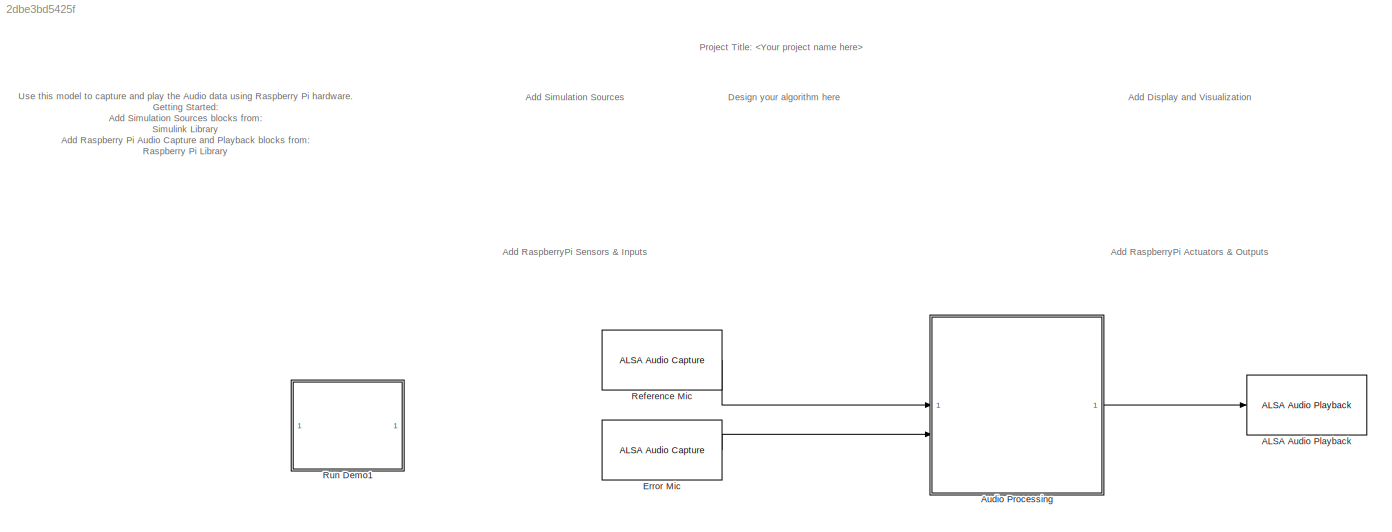
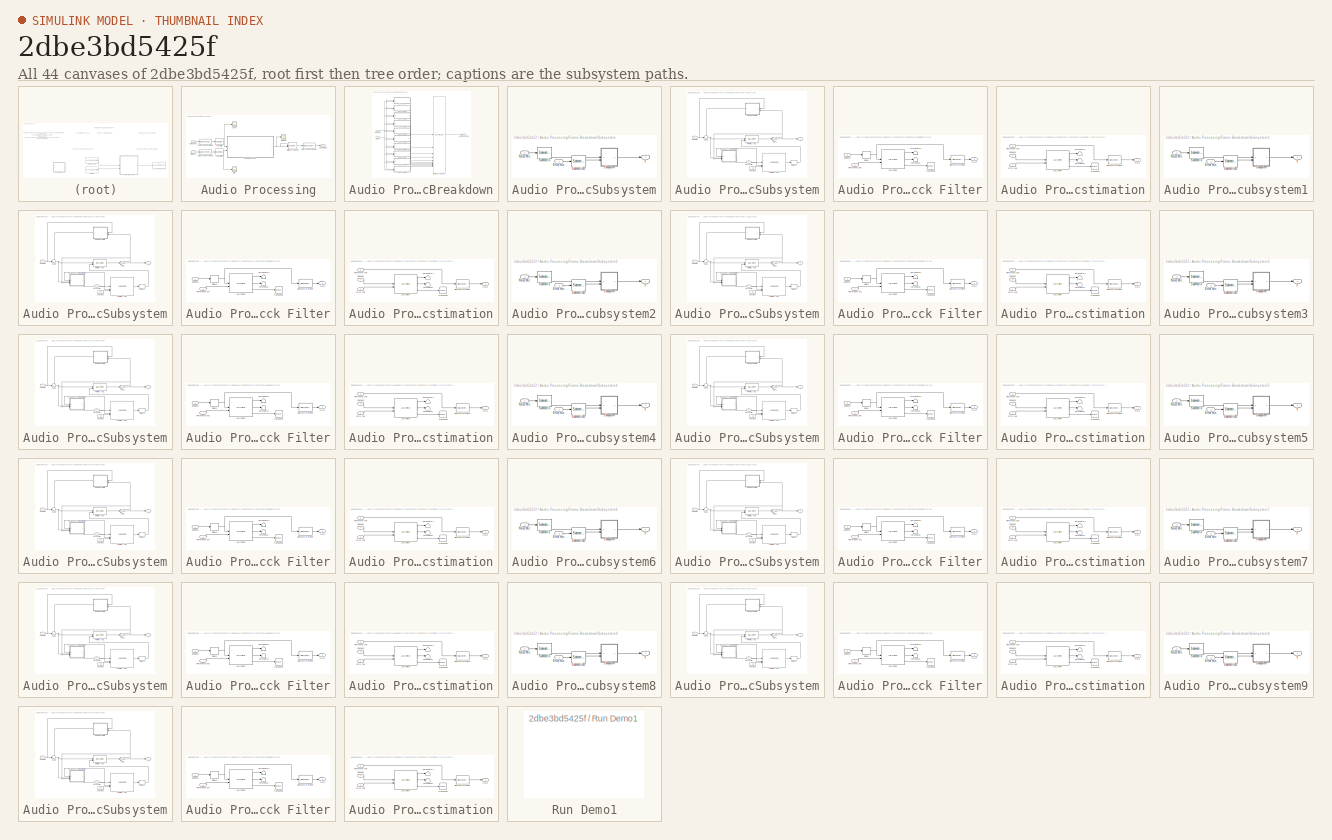
[diagram: thumbnail index - all 44 canvases of the model, root first then tree order]
MODEL slx_2dbe3bd5425f
KIND model
CONFIG AbsTol = auto
CONFIG EnableMultiTasking = on
CONFIG FixedStep = auto
CONFIG MaxStep = auto
CONFIG MinStep = auto
CONFIG RelTol = 1e-3
CONFIG SampleTimeConstraint = Unconstrained
CONFIG SolverName = ode45
CONFIG StartTime = 0.0
CONFIG StopTime = 10.0
BLOCK [Reference] ALSA Audio Playback  REF=raspberrypiAVlib/ALSA Audio Playback
  SourceBlock = raspberrypiAVlib/ALSA Audio Playback
  SourceType = codertarget.raspi.internal.RaspiALSAAudioPlayback
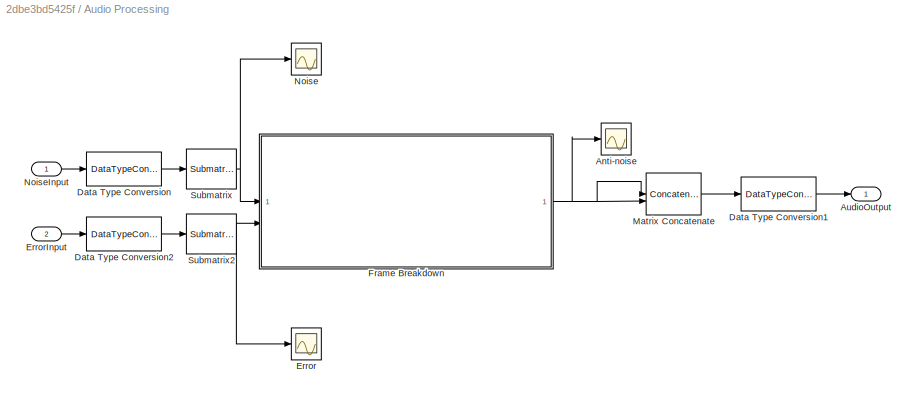
BLOCK [SubSystem] Audio Processing
  TreatAsAtomicUnit = on
BLOCK [Scope] Audio Processing/Anti-noise
  Floating = off
  NumInputPorts = 1
  ScopeSpecificationString = Simulink.scopes.TimeScopeBlockCfg('CurrentConfiguration', extmgr.ConfigurationSet(extmgr.Configuration('Core','General UI',true),extmgr.Configuration('Core','Source UI',true),extmgr.Configuration('Sources','WiredSimulink',true,'DataLoggingVariableName','ScopeData2'),extmgr.Configuration('Visuals','Time Domain',true,'SerializedDisplays',{struct('MinYLimReal','-16854929013985211225618959778076103966...<+2840ch>
BLOCK [Outport] Audio Processing/AudioOutput
BLOCK [DataTypeConversion] Audio Processing/Data Type Conversion
  OutDataTypeStr = double
  RndMeth = Floor
  SaturateOnIntegerOverflow = off
BLOCK [DataTypeConversion] Audio Processing/Data Type Conversion1
  LockScale = on
  OutDataTypeStr = int16
  RndMeth = Floor
  SaturateOnIntegerOverflow = off
BLOCK [DataTypeConversion] Audio Processing/Data Type Conversion2
  OutDataTypeStr = double
  RndMeth = Floor
  SaturateOnIntegerOverflow = off
BLOCK [Scope] Audio Processing/Error
  Floating = off
  NumInputPorts = 1
  ScopeSpecificationString = Simulink.scopes.TimeScopeBlockCfg('CurrentConfiguration', extmgr.ConfigurationSet(extmgr.Configuration('Core','General UI',true),extmgr.Configuration('Core','Source UI',true),extmgr.Configuration('Sources','WiredSimulink',true,'DataLoggingVariableName','ScopeData1'),extmgr.Configuration('Visuals','Time Domain',true,'SerializedDisplays',{struct('MinYLimReal','-40959.875','MaxYLimReal','40958.875','...<+1579ch>
BLOCK [Inport] Audio Processing/ErrorInput
  Port = 2
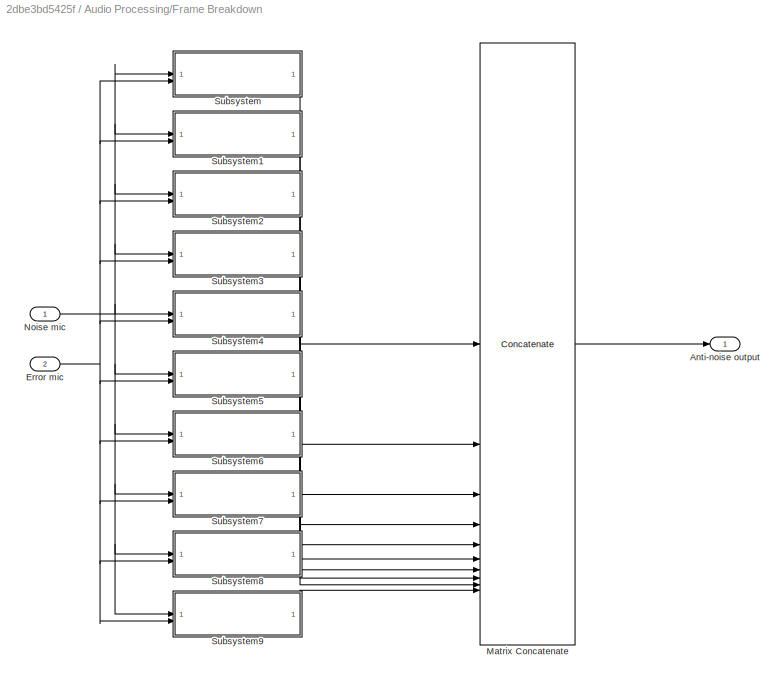
BLOCK [SubSystem] Audio Processing/Frame Breakdown
  TreatAsAtomicUnit = on
BLOCK [Outport] Audio Processing/Frame Breakdown/Anti-noise output
BLOCK [Inport] Audio Processing/Frame Breakdown/Error mic
  Port = 2
BLOCK [Concatenate] Audio Processing/Frame Breakdown/Matrix Concatenate
  Mode = Multidimensional array
  NumInputs = 10
BLOCK [Inport] Audio Processing/Frame Breakdown/Noise mic
BLOCK [SubSystem] Audio Processing/Frame Breakdown/Subsystem
BLOCK [Inport] Audio Processing/Frame Breakdown/Subsystem/Error mic
  Port = 2
BLOCK [Inport] Audio Processing/Frame Breakdown/Subsystem/Noise Mic
BLOCK [Reference] Audio Processing/Frame Breakdown/Subsystem/Submatrix  REF=matrix_library/Submatrix
  LibrarySourceBlock = simulink/Matrix\nOperations/Submatrix
  SourceBlock = matrix_library/Submatrix
  SourceType = Submatrix
BLOCK [Reference] Audio Processing/Frame Breakdown/Subsystem/Submatrix10  REF=matrix_library/Submatrix
  LibrarySourceBlock = simulink/Matrix\nOperations/Submatrix
  SourceBlock = matrix_library/Submatrix
  SourceType = Submatrix
BLOCK [SubSystem] Audio Processing/Frame Breakdown/Subsystem/Subsystem
BLOCK [Constant] Audio Processing/Frame Breakdown/Subsystem/Subsystem/Constant
  Value = 0.5
BLOCK [Delay] Audio Processing/Frame Breakdown/Subsystem/Subsystem/Delay2
  DelayLength = 1
  InputPortMap = u0
BLOCK [Inport] Audio Processing/Frame Breakdown/Subsystem/Subsystem/Error Mic
  Port = 2
BLOCK [DiscreteFir] Audio Processing/Frame Breakdown/Subsystem/Subsystem/FIR Filter - ANC
  CoefSource = Input port
  InputPortMap = u0,u1
  OutputPortMap = o0
BLOCK [SubSystem] Audio Processing/Frame Breakdown/Subsystem/Subsystem/Feedback Filter
BLOCK [Delay] Audio Processing/Frame Breakdown/Subsystem/Subsystem/Feedback Filter/Delay1
  DelayLength = 1
  InitialCondition = 0
  InputPortMap = u0
BLOCK [DiscreteFir] Audio Processing/Frame Breakdown/Subsystem/Subsystem/Feedback Filter/Discrete FIR Filter
  Coefficients = [0.00101384917886881 0.000954360584855603 0.000888247390767520 0.000820254005891841 0.000751185706834925 0.000681319336974037 0.000610798738766888 0.000539722162688470 0.000468169027558330 0.000396209948252177 0.000323911048721091 0.000251336008752878 0.000178547106236695 0.000105605774000373 3.25729052471416e-05 -4.04909788093705e-05 -0.000113525640503992 -0.000186471084645148 -0.0002592675467465...<+286ch>  <repeated x10 — deduplicated; at blocks: Discrete FIR Filter>
  InputPortMap = u0
  OutputPortMap = o0
BLOCK [Reference] Audio Processing/Frame Breakdown/Subsystem/Subsystem/Feedback Filter/LMS Filter  REF=dspadpt3/LMS Filter
  Commented = on
  SourceBlock = dspadpt3/LMS Filter
  SourceType = LMS Filter
BLOCK [Outport] Audio Processing/Frame Breakdown/Subsystem/Subsystem/Feedback Filter/Out1
BLOCK [Inport] Audio Processing/Frame Breakdown/Subsystem/Subsystem/Feedback Filter/Reference Mic
  NameLocation = top
BLOCK [Inport] Audio Processing/Frame Breakdown/Subsystem/Subsystem/Feedback Filter/Speaker
  NameLocation = top
  Port = 2
BLOCK [Terminator] Audio Processing/Frame Breakdown/Subsystem/Subsystem/Feedback Filter/Terminator
  Commented = on
BLOCK [Terminator] Audio Processing/Frame Breakdown/Subsystem/Subsystem/Feedback Filter/Terminator1
BLOCK [Math] Audio Processing/Frame Breakdown/Subsystem/Subsystem/Feedback Filter/Transpose
  Commented = on
  Operator = transpose
BLOCK [Gain] Audio Processing/Frame Breakdown/Subsystem/Subsystem/Gain1
  Gain = -1
BLOCK [Reference] Audio Processing/Frame Breakdown/Subsystem/Subsystem/LMS Filter - ANC  REF=dspadpt3/LMS Update
  SourceBlock = dspadpt3/LMS Update
  SourceType = dsp.simulink.LMSUpdate
BLOCK [Inport] Audio Processing/Frame Breakdown/Subsystem/Subsystem/Noise Mic
BLOCK [SubSystem] Audio Processing/Frame Breakdown/Subsystem/Subsystem/Secondary Path Estimation
BLOCK [DiscreteFir] Audio Processing/Frame Breakdown/Subsystem/Subsystem/Secondary Path Estimation/Discrete FIR Filter
  Coefficients = [ 0.0140278628596976	0.0121185247768609	0.0107843209997475	0.0100770558200791	0.00943784604944740	0.00886504054968210	0.00829013530587448	0.00771615278356869	0.00714409944106634	0.00656485179661988	0.00598541185793895	0.00539709096066405	0.00480528386267804	0.00420773058548222	0.00360674513336359	0.00300320476502875	0.00239703543148670	0.00179006462081619	0.00118107418170664	0.000571644411742949	-...<+254ch>  <repeated x10 — deduplicated; at blocks: Discrete FIR Filter>
  InputPortMap = u0
  OutputPortMap = o0
BLOCK [Inport] Audio Processing/Frame Breakdown/Subsystem/Subsystem/Secondary Path Estimation/Error Mic
BLOCK [Reference] Audio Processing/Frame Breakdown/Subsystem/Subsystem/Secondary Path Estimation/LMS Filter  REF=dspadpt3/LMS Filter
  Commented = on
  SourceBlock = dspadpt3/LMS Filter
  SourceType = LMS Filter
BLOCK [Outport] Audio Processing/Frame Breakdown/Subsystem/Subsystem/Secondary Path Estimation/Out1
BLOCK [Inport] Audio Processing/Frame Breakdown/Subsystem/Subsystem/Secondary Path Estimation/Reference Mic
  NameLocation = top
  Port = 2
BLOCK [Inport] Audio Processing/Frame Breakdown/Subsystem/Subsystem/Secondary Path Estimation/Speaker
  NameLocation = top
  Port = 3
BLOCK [Terminator] Audio Processing/Frame Breakdown/Subsystem/Subsystem/Secondary Path Estimation/Terminator
  Commented = on
BLOCK [Terminator] Audio Processing/Frame Breakdown/Subsystem/Subsystem/Secondary Path Estimation/Terminator1
  Commented = on
BLOCK [Math] Audio Processing/Frame Breakdown/Subsystem/Subsystem/Secondary Path Estimation/Transpose
  Commented = on
  Operator = transpose
BLOCK [Sum] Audio Processing/Frame Breakdown/Subsystem/Subsystem/Sum3
  Inputs = -+|
BLOCK [Outport] Audio Processing/Frame Breakdown/Subsystem/Subsystem/y
BLOCK [Outport] Audio Processing/Frame Breakdown/Subsystem/y
BLOCK [SubSystem] Audio Processing/Frame Breakdown/Subsystem1
BLOCK [Inport] Audio Processing/Frame Breakdown/Subsystem1/Error mic
  Port = 2
BLOCK [Inport] Audio Processing/Frame Breakdown/Subsystem1/Noise Mic
BLOCK [Reference] Audio Processing/Frame Breakdown/Subsystem1/Submatrix  REF=matrix_library/Submatrix
  LibrarySourceBlock = simulink/Matrix\nOperations/Submatrix
  SourceBlock = matrix_library/Submatrix
  SourceType = Submatrix
BLOCK [Reference] Audio Processing/Frame Breakdown/Subsystem1/Submatrix10  REF=matrix_library/Submatrix
  LibrarySourceBlock = simulink/Matrix\nOperations/Submatrix
  SourceBlock = matrix_library/Submatrix
  SourceType = Submatrix
BLOCK [SubSystem] Audio Processing/Frame Breakdown/Subsystem1/Subsystem
BLOCK [Constant] Audio Processing/Frame Breakdown/Subsystem1/Subsystem/Constant
  Value = 0.5
BLOCK [Delay] Audio Processing/Frame Breakdown/Subsystem1/Subsystem/Delay2
  DelayLength = 1
  InputPortMap = u0
BLOCK [Inport] Audio Processing/Frame Breakdown/Subsystem1/Subsystem/Error Mic
  Port = 2
BLOCK [DiscreteFir] Audio Processing/Frame Breakdown/Subsystem1/Subsystem/FIR Filter - ANC
  CoefSource = Input port
  InputPortMap = u0,u1
  OutputPortMap = o0
BLOCK [SubSystem] Audio Processing/Frame Breakdown/Subsystem1/Subsystem/Feedback Filter
BLOCK [Delay] Audio Processing/Frame Breakdown/Subsystem1/Subsystem/Feedback Filter/Delay1
  DelayLength = 1
  InitialCondition = 0
  InputPortMap = u0
BLOCK [DiscreteFir] Audio Processing/Frame Breakdown/Subsystem1/Subsystem/Feedback Filter/Discrete FIR Filter
  InputPortMap = u0
  OutputPortMap = o0
BLOCK [Reference] Audio Processing/Frame Breakdown/Subsystem1/Subsystem/Feedback Filter/LMS Filter  REF=dspadpt3/LMS Filter
  Commented = on
  SourceBlock = dspadpt3/LMS Filter
  SourceType = LMS Filter
BLOCK [Outport] Audio Processing/Frame Breakdown/Subsystem1/Subsystem/Feedback Filter/Out1
BLOCK [Inport] Audio Processing/Frame Breakdown/Subsystem1/Subsystem/Feedback Filter/Reference Mic
  NameLocation = top
BLOCK [Inport] Audio Processing/Frame Breakdown/Subsystem1/Subsystem/Feedback Filter/Speaker
  NameLocation = top
  Port = 2
BLOCK [Terminator] Audio Processing/Frame Breakdown/Subsystem1/Subsystem/Feedback Filter/Terminator
  Commented = on
BLOCK [Terminator] Audio Processing/Frame Breakdown/Subsystem1/Subsystem/Feedback Filter/Terminator1
BLOCK [Math] Audio Processing/Frame Breakdown/Subsystem1/Subsystem/Feedback Filter/Transpose
  Commented = on
  Operator = transpose
BLOCK [Gain] Audio Processing/Frame Breakdown/Subsystem1/Subsystem/Gain1
  Gain = -1
BLOCK [Reference] Audio Processing/Frame Breakdown/Subsystem1/Subsystem/LMS Filter - ANC  REF=dspadpt3/LMS Update
  SourceBlock = dspadpt3/LMS Update
  SourceType = dsp.simulink.LMSUpdate
BLOCK [Inport] Audio Processing/Frame Breakdown/Subsystem1/Subsystem/Noise Mic
BLOCK [SubSystem] Audio Processing/Frame Breakdown/Subsystem1/Subsystem/Secondary Path Estimation
BLOCK [DiscreteFir] Audio Processing/Frame Breakdown/Subsystem1/Subsystem/Secondary Path Estimation/Discrete FIR Filter
  InputPortMap = u0
  OutputPortMap = o0
BLOCK [Inport] Audio Processing/Frame Breakdown/Subsystem1/Subsystem/Secondary Path Estimation/Error Mic
BLOCK [Reference] Audio Processing/Frame Breakdown/Subsystem1/Subsystem/Secondary Path Estimation/LMS Filter  REF=dspadpt3/LMS Filter
  Commented = on
  SourceBlock = dspadpt3/LMS Filter
  SourceType = LMS Filter
BLOCK [Outport] Audio Processing/Frame Breakdown/Subsystem1/Subsystem/Secondary Path Estimation/Out1
BLOCK [Inport] Audio Processing/Frame Breakdown/Subsystem1/Subsystem/Secondary Path Estimation/Reference Mic
  NameLocation = top
  Port = 2
BLOCK [Inport] Audio Processing/Frame Breakdown/Subsystem1/Subsystem/Secondary Path Estimation/Speaker
  NameLocation = top
  Port = 3
BLOCK [Terminator] Audio Processing/Frame Breakdown/Subsystem1/Subsystem/Secondary Path Estimation/Terminator
  Commented = on
BLOCK [Terminator] Audio Processing/Frame Breakdown/Subsystem1/Subsystem/Secondary Path Estimation/Terminator1
  Commented = on
BLOCK [Math] Audio Processing/Frame Breakdown/Subsystem1/Subsystem/Secondary Path Estimation/Transpose
  Commented = on
  Operator = transpose
BLOCK [Sum] Audio Processing/Frame Breakdown/Subsystem1/Subsystem/Sum3
  Inputs = -+|
BLOCK [Outport] Audio Processing/Frame Breakdown/Subsystem1/Subsystem/y
BLOCK [Outport] Audio Processing/Frame Breakdown/Subsystem1/y
BLOCK [SubSystem] Audio Processing/Frame Breakdown/Subsystem2
BLOCK [Inport] Audio Processing/Frame Breakdown/Subsystem2/Error mic
  Port = 2
BLOCK [Inport] Audio Processing/Frame Breakdown/Subsystem2/Noise Mic
BLOCK [Reference] Audio Processing/Frame Breakdown/Subsystem2/Submatrix  REF=matrix_library/Submatrix
  LibrarySourceBlock = simulink/Matrix\nOperations/Submatrix
  SourceBlock = matrix_library/Submatrix
  SourceType = Submatrix
BLOCK [Reference] Audio Processing/Frame Breakdown/Subsystem2/Submatrix10  REF=matrix_library/Submatrix
  LibrarySourceBlock = simulink/Matrix\nOperations/Submatrix
  SourceBlock = matrix_library/Submatrix
  SourceType = Submatrix
BLOCK [SubSystem] Audio Processing/Frame Breakdown/Subsystem2/Subsystem
BLOCK [Constant] Audio Processing/Frame Breakdown/Subsystem2/Subsystem/Constant
  Value = 0.5
BLOCK [Delay] Audio Processing/Frame Breakdown/Subsystem2/Subsystem/Delay2
  DelayLength = 1
  InputPortMap = u0
BLOCK [Inport] Audio Processing/Frame Breakdown/Subsystem2/Subsystem/Error Mic
  Port = 2
BLOCK [DiscreteFir] Audio Processing/Frame Breakdown/Subsystem2/Subsystem/FIR Filter - ANC
  CoefSource = Input port
  InputPortMap = u0,u1
  OutputPortMap = o0
BLOCK [SubSystem] Audio Processing/Frame Breakdown/Subsystem2/Subsystem/Feedback Filter
BLOCK [Delay] Audio Processing/Frame Breakdown/Subsystem2/Subsystem/Feedback Filter/Delay1
  DelayLength = 1
  InitialCondition = 0
  InputPortMap = u0
BLOCK [DiscreteFir] Audio Processing/Frame Breakdown/Subsystem2/Subsystem/Feedback Filter/Discrete FIR Filter
  InputPortMap = u0
  OutputPortMap = o0
BLOCK [Reference] Audio Processing/Frame Breakdown/Subsystem2/Subsystem/Feedback Filter/LMS Filter  REF=dspadpt3/LMS Filter
  Commented = on
  SourceBlock = dspadpt3/LMS Filter
  SourceType = LMS Filter
BLOCK [Outport] Audio Processing/Frame Breakdown/Subsystem2/Subsystem/Feedback Filter/Out1
BLOCK [Inport] Audio Processing/Frame Breakdown/Subsystem2/Subsystem/Feedback Filter/Reference Mic
  NameLocation = top
BLOCK [Inport] Audio Processing/Frame Breakdown/Subsystem2/Subsystem/Feedback Filter/Speaker
  NameLocation = top
  Port = 2
BLOCK [Terminator] Audio Processing/Frame Breakdown/Subsystem2/Subsystem/Feedback Filter/Terminator
  Commented = on
BLOCK [Terminator] Audio Processing/Frame Breakdown/Subsystem2/Subsystem/Feedback Filter/Terminator1
BLOCK [Math] Audio Processing/Frame Breakdown/Subsystem2/Subsystem/Feedback Filter/Transpose
  Commented = on
  Operator = transpose
BLOCK [Gain] Audio Processing/Frame Breakdown/Subsystem2/Subsystem/Gain1
  Gain = -1
BLOCK [Reference] Audio Processing/Frame Breakdown/Subsystem2/Subsystem/LMS Filter - ANC  REF=dspadpt3/LMS Update
  SourceBlock = dspadpt3/LMS Update
  SourceType = dsp.simulink.LMSUpdate
BLOCK [Inport] Audio Processing/Frame Breakdown/Subsystem2/Subsystem/Noise Mic
BLOCK [SubSystem] Audio Processing/Frame Breakdown/Subsystem2/Subsystem/Secondary Path Estimation
BLOCK [DiscreteFir] Audio Processing/Frame Breakdown/Subsystem2/Subsystem/Secondary Path Estimation/Discrete FIR Filter
  InputPortMap = u0
  OutputPortMap = o0
BLOCK [Inport] Audio Processing/Frame Breakdown/Subsystem2/Subsystem/Secondary Path Estimation/Error Mic
BLOCK [Reference] Audio Processing/Frame Breakdown/Subsystem2/Subsystem/Secondary Path Estimation/LMS Filter  REF=dspadpt3/LMS Filter
  Commented = on
  SourceBlock = dspadpt3/LMS Filter
  SourceType = LMS Filter
BLOCK [Outport] Audio Processing/Frame Breakdown/Subsystem2/Subsystem/Secondary Path Estimation/Out1
BLOCK [Inport] Audio Processing/Frame Breakdown/Subsystem2/Subsystem/Secondary Path Estimation/Reference Mic
  NameLocation = top
  Port = 2
BLOCK [Inport] Audio Processing/Frame Breakdown/Subsystem2/Subsystem/Secondary Path Estimation/Speaker
  NameLocation = top
  Port = 3
BLOCK [Terminator] Audio Processing/Frame Breakdown/Subsystem2/Subsystem/Secondary Path Estimation/Terminator
  Commented = on
BLOCK [Terminator] Audio Processing/Frame Breakdown/Subsystem2/Subsystem/Secondary Path Estimation/Terminator1
  Commented = on
BLOCK [Math] Audio Processing/Frame Breakdown/Subsystem2/Subsystem/Secondary Path Estimation/Transpose
  Commented = on
  Operator = transpose
BLOCK [Sum] Audio Processing/Frame Breakdown/Subsystem2/Subsystem/Sum3
  Inputs = -+|
BLOCK [Outport] Audio Processing/Frame Breakdown/Subsystem2/Subsystem/y
BLOCK [Outport] Audio Processing/Frame Breakdown/Subsystem2/y
BLOCK [SubSystem] Audio Processing/Frame Breakdown/Subsystem3
BLOCK [Inport] Audio Processing/Frame Breakdown/Subsystem3/Error mic
  Port = 2
BLOCK [Inport] Audio Processing/Frame Breakdown/Subsystem3/Noise Mic
BLOCK [Reference] Audio Processing/Frame Breakdown/Subsystem3/Submatrix  REF=matrix_library/Submatrix
  LibrarySourceBlock = simulink/Matrix\nOperations/Submatrix
  SourceBlock = matrix_library/Submatrix
  SourceType = Submatrix
BLOCK [Reference] Audio Processing/Frame Breakdown/Subsystem3/Submatrix10  REF=matrix_library/Submatrix
  LibrarySourceBlock = simulink/Matrix\nOperations/Submatrix
  SourceBlock = matrix_library/Submatrix
  SourceType = Submatrix
BLOCK [SubSystem] Audio Processing/Frame Breakdown/Subsystem3/Subsystem
BLOCK [Constant] Audio Processing/Frame Breakdown/Subsystem3/Subsystem/Constant
  Value = 0.5
BLOCK [Delay] Audio Processing/Frame Breakdown/Subsystem3/Subsystem/Delay2
  DelayLength = 1
  InputPortMap = u0
BLOCK [Inport] Audio Processing/Frame Breakdown/Subsystem3/Subsystem/Error Mic
  Port = 2
BLOCK [DiscreteFir] Audio Processing/Frame Breakdown/Subsystem3/Subsystem/FIR Filter - ANC
  CoefSource = Input port
  InputPortMap = u0,u1
  OutputPortMap = o0
BLOCK [SubSystem] Audio Processing/Frame Breakdown/Subsystem3/Subsystem/Feedback Filter
BLOCK [Delay] Audio Processing/Frame Breakdown/Subsystem3/Subsystem/Feedback Filter/Delay1
  DelayLength = 1
  InitialCondition = 0
  InputPortMap = u0
BLOCK [DiscreteFir] Audio Processing/Frame Breakdown/Subsystem3/Subsystem/Feedback Filter/Discrete FIR Filter
  InputPortMap = u0
  OutputPortMap = o0
BLOCK [Reference] Audio Processing/Frame Breakdown/Subsystem3/Subsystem/Feedback Filter/LMS Filter  REF=dspadpt3/LMS Filter
  Commented = on
  SourceBlock = dspadpt3/LMS Filter
  SourceType = LMS Filter
BLOCK [Outport] Audio Processing/Frame Breakdown/Subsystem3/Subsystem/Feedback Filter/Out1
BLOCK [Inport] Audio Processing/Frame Breakdown/Subsystem3/Subsystem/Feedback Filter/Reference Mic
  NameLocation = top
BLOCK [Inport] Audio Processing/Frame Breakdown/Subsystem3/Subsystem/Feedback Filter/Speaker
  NameLocation = top
  Port = 2
BLOCK [Terminator] Audio Processing/Frame Breakdown/Subsystem3/Subsystem/Feedback Filter/Terminator
  Commented = on
BLOCK [Terminator] Audio Processing/Frame Breakdown/Subsystem3/Subsystem/Feedback Filter/Terminator1
BLOCK [Math] Audio Processing/Frame Breakdown/Subsystem3/Subsystem/Feedback Filter/Transpose
  Commented = on
  Operator = transpose
BLOCK [Gain] Audio Processing/Frame Breakdown/Subsystem3/Subsystem/Gain1
  Gain = -1
BLOCK [Reference] Audio Processing/Frame Breakdown/Subsystem3/Subsystem/LMS Filter - ANC  REF=dspadpt3/LMS Update
  SourceBlock = dspadpt3/LMS Update
  SourceType = dsp.simulink.LMSUpdate
BLOCK [Inport] Audio Processing/Frame Breakdown/Subsystem3/Subsystem/Noise Mic
BLOCK [SubSystem] Audio Processing/Frame Breakdown/Subsystem3/Subsystem/Secondary Path Estimation
BLOCK [DiscreteFir] Audio Processing/Frame Breakdown/Subsystem3/Subsystem/Secondary Path Estimation/Discrete FIR Filter
  InputPortMap = u0
  OutputPortMap = o0
BLOCK [Inport] Audio Processing/Frame Breakdown/Subsystem3/Subsystem/Secondary Path Estimation/Error Mic
BLOCK [Reference] Audio Processing/Frame Breakdown/Subsystem3/Subsystem/Secondary Path Estimation/LMS Filter  REF=dspadpt3/LMS Filter
  Commented = on
  SourceBlock = dspadpt3/LMS Filter
  SourceType = LMS Filter
BLOCK [Outport] Audio Processing/Frame Breakdown/Subsystem3/Subsystem/Secondary Path Estimation/Out1
BLOCK [Inport] Audio Processing/Frame Breakdown/Subsystem3/Subsystem/Secondary Path Estimation/Reference Mic
  NameLocation = top
  Port = 2
BLOCK [Inport] Audio Processing/Frame Breakdown/Subsystem3/Subsystem/Secondary Path Estimation/Speaker
  NameLocation = top
  Port = 3
BLOCK [Terminator] Audio Processing/Frame Breakdown/Subsystem3/Subsystem/Secondary Path Estimation/Terminator
  Commented = on
BLOCK [Terminator] Audio Processing/Frame Breakdown/Subsystem3/Subsystem/Secondary Path Estimation/Terminator1
  Commented = on
BLOCK [Math] Audio Processing/Frame Breakdown/Subsystem3/Subsystem/Secondary Path Estimation/Transpose
  Commented = on
  Operator = transpose
BLOCK [Sum] Audio Processing/Frame Breakdown/Subsystem3/Subsystem/Sum3
  Inputs = -+|
BLOCK [Outport] Audio Processing/Frame Breakdown/Subsystem3/Subsystem/y
BLOCK [Outport] Audio Processing/Frame Breakdown/Subsystem3/y
BLOCK [SubSystem] Audio Processing/Frame Breakdown/Subsystem4
BLOCK [Inport] Audio Processing/Frame Breakdown/Subsystem4/Error mic
  Port = 2
BLOCK [Inport] Audio Processing/Frame Breakdown/Subsystem4/Noise Mic
BLOCK [Reference] Audio Processing/Frame Breakdown/Subsystem4/Submatrix  REF=matrix_library/Submatrix
  LibrarySourceBlock = simulink/Matrix\nOperations/Submatrix
  SourceBlock = matrix_library/Submatrix
  SourceType = Submatrix
BLOCK [Reference] Audio Processing/Frame Breakdown/Subsystem4/Submatrix10  REF=matrix_library/Submatrix
  LibrarySourceBlock = simulink/Matrix\nOperations/Submatrix
  SourceBlock = matrix_library/Submatrix
  SourceType = Submatrix
BLOCK [SubSystem] Audio Processing/Frame Breakdown/Subsystem4/Subsystem
BLOCK [Constant] Audio Processing/Frame Breakdown/Subsystem4/Subsystem/Constant
  Value = 0.5
BLOCK [Delay] Audio Processing/Frame Breakdown/Subsystem4/Subsystem/Delay2
  DelayLength = 1
  InputPortMap = u0
BLOCK [Inport] Audio Processing/Frame Breakdown/Subsystem4/Subsystem/Error Mic
  Port = 2
BLOCK [DiscreteFir] Audio Processing/Frame Breakdown/Subsystem4/Subsystem/FIR Filter - ANC
  CoefSource = Input port
  InputPortMap = u0,u1
  OutputPortMap = o0
BLOCK [SubSystem] Audio Processing/Frame Breakdown/Subsystem4/Subsystem/Feedback Filter
BLOCK [Delay] Audio Processing/Frame Breakdown/Subsystem4/Subsystem/Feedback Filter/Delay1
  DelayLength = 1
  InitialCondition = 0
  InputPortMap = u0
BLOCK [DiscreteFir] Audio Processing/Frame Breakdown/Subsystem4/Subsystem/Feedback Filter/Discrete FIR Filter
  InputPortMap = u0
  OutputPortMap = o0
BLOCK [Reference] Audio Processing/Frame Breakdown/Subsystem4/Subsystem/Feedback Filter/LMS Filter  REF=dspadpt3/LMS Filter
  Commented = on
  SourceBlock = dspadpt3/LMS Filter
  SourceType = LMS Filter
BLOCK [Outport] Audio Processing/Frame Breakdown/Subsystem4/Subsystem/Feedback Filter/Out1
BLOCK [Inport] Audio Processing/Frame Breakdown/Subsystem4/Subsystem/Feedback Filter/Reference Mic
  NameLocation = top
BLOCK [Inport] Audio Processing/Frame Breakdown/Subsystem4/Subsystem/Feedback Filter/Speaker
  NameLocation = top
  Port = 2
BLOCK [Terminator] Audio Processing/Frame Breakdown/Subsystem4/Subsystem/Feedback Filter/Terminator
  Commented = on
BLOCK [Terminator] Audio Processing/Frame Breakdown/Subsystem4/Subsystem/Feedback Filter/Terminator1
BLOCK [Math] Audio Processing/Frame Breakdown/Subsystem4/Subsystem/Feedback Filter/Transpose
  Commented = on
  Operator = transpose
BLOCK [Gain] Audio Processing/Frame Breakdown/Subsystem4/Subsystem/Gain1
  Gain = -1
BLOCK [Reference] Audio Processing/Frame Breakdown/Subsystem4/Subsystem/LMS Filter - ANC  REF=dspadpt3/LMS Update
  SourceBlock = dspadpt3/LMS Update
  SourceType = dsp.simulink.LMSUpdate
BLOCK [Inport] Audio Processing/Frame Breakdown/Subsystem4/Subsystem/Noise Mic
BLOCK [SubSystem] Audio Processing/Frame Breakdown/Subsystem4/Subsystem/Secondary Path Estimation
BLOCK [DiscreteFir] Audio Processing/Frame Breakdown/Subsystem4/Subsystem/Secondary Path Estimation/Discrete FIR Filter
  InputPortMap = u0
  OutputPortMap = o0
BLOCK [Inport] Audio Processing/Frame Breakdown/Subsystem4/Subsystem/Secondary Path Estimation/Error Mic
BLOCK [Reference] Audio Processing/Frame Breakdown/Subsystem4/Subsystem/Secondary Path Estimation/LMS Filter  REF=dspadpt3/LMS Filter
  Commented = on
  SourceBlock = dspadpt3/LMS Filter
  SourceType = LMS Filter
BLOCK [Outport] Audio Processing/Frame Breakdown/Subsystem4/Subsystem/Secondary Path Estimation/Out1
BLOCK [Inport] Audio Processing/Frame Breakdown/Subsystem4/Subsystem/Secondary Path Estimation/Reference Mic
  NameLocation = top
  Port = 2
BLOCK [Inport] Audio Processing/Frame Breakdown/Subsystem4/Subsystem/Secondary Path Estimation/Speaker
  NameLocation = top
  Port = 3
BLOCK [Terminator] Audio Processing/Frame Breakdown/Subsystem4/Subsystem/Secondary Path Estimation/Terminator
  Commented = on
BLOCK [Terminator] Audio Processing/Frame Breakdown/Subsystem4/Subsystem/Secondary Path Estimation/Terminator1
  Commented = on
BLOCK [Math] Audio Processing/Frame Breakdown/Subsystem4/Subsystem/Secondary Path Estimation/Transpose
  Commented = on
  Operator = transpose
BLOCK [Sum] Audio Processing/Frame Breakdown/Subsystem4/Subsystem/Sum3
  Inputs = -+|
BLOCK [Outport] Audio Processing/Frame Breakdown/Subsystem4/Subsystem/y
BLOCK [Outport] Audio Processing/Frame Breakdown/Subsystem4/y
BLOCK [SubSystem] Audio Processing/Frame Breakdown/Subsystem5
BLOCK [Inport] Audio Processing/Frame Breakdown/Subsystem5/Error mic
  Port = 2
BLOCK [Inport] Audio Processing/Frame Breakdown/Subsystem5/Noise Mic
BLOCK [Reference] Audio Processing/Frame Breakdown/Subsystem5/Submatrix  REF=matrix_library/Submatrix
  LibrarySourceBlock = simulink/Matrix\nOperations/Submatrix
  SourceBlock = matrix_library/Submatrix
  SourceType = Submatrix
BLOCK [Reference] Audio Processing/Frame Breakdown/Subsystem5/Submatrix10  REF=matrix_library/Submatrix
  LibrarySourceBlock = simulink/Matrix\nOperations/Submatrix
  SourceBlock = matrix_library/Submatrix
  SourceType = Submatrix
BLOCK [SubSystem] Audio Processing/Frame Breakdown/Subsystem5/Subsystem
BLOCK [Constant] Audio Processing/Frame Breakdown/Subsystem5/Subsystem/Constant
  Value = 0.5
BLOCK [Delay] Audio Processing/Frame Breakdown/Subsystem5/Subsystem/Delay2
  DelayLength = 1
  InputPortMap = u0
BLOCK [Inport] Audio Processing/Frame Breakdown/Subsystem5/Subsystem/Error Mic
  Port = 2
BLOCK [DiscreteFir] Audio Processing/Frame Breakdown/Subsystem5/Subsystem/FIR Filter - ANC
  CoefSource = Input port
  InputPortMap = u0,u1
  OutputPortMap = o0
BLOCK [SubSystem] Audio Processing/Frame Breakdown/Subsystem5/Subsystem/Feedback Filter
BLOCK [Delay] Audio Processing/Frame Breakdown/Subsystem5/Subsystem/Feedback Filter/Delay1
  DelayLength = 1
  InitialCondition = 0
  InputPortMap = u0
BLOCK [DiscreteFir] Audio Processing/Frame Breakdown/Subsystem5/Subsystem/Feedback Filter/Discrete FIR Filter
  InputPortMap = u0
  OutputPortMap = o0
BLOCK [Reference] Audio Processing/Frame Breakdown/Subsystem5/Subsystem/Feedback Filter/LMS Filter  REF=dspadpt3/LMS Filter
  Commented = on
  SourceBlock = dspadpt3/LMS Filter
  SourceType = LMS Filter
BLOCK [Outport] Audio Processing/Frame Breakdown/Subsystem5/Subsystem/Feedback Filter/Out1
BLOCK [Inport] Audio Processing/Frame Breakdown/Subsystem5/Subsystem/Feedback Filter/Reference Mic
  NameLocation = top
BLOCK [Inport] Audio Processing/Frame Breakdown/Subsystem5/Subsystem/Feedback Filter/Speaker
  NameLocation = top
  Port = 2
BLOCK [Terminator] Audio Processing/Frame Breakdown/Subsystem5/Subsystem/Feedback Filter/Terminator
  Commented = on
BLOCK [Terminator] Audio Processing/Frame Breakdown/Subsystem5/Subsystem/Feedback Filter/Terminator1
BLOCK [Math] Audio Processing/Frame Breakdown/Subsystem5/Subsystem/Feedback Filter/Transpose
  Commented = on
  Operator = transpose
BLOCK [Gain] Audio Processing/Frame Breakdown/Subsystem5/Subsystem/Gain1
  Gain = -1
BLOCK [Reference] Audio Processing/Frame Breakdown/Subsystem5/Subsystem/LMS Filter - ANC  REF=dspadpt3/LMS Update
  SourceBlock = dspadpt3/LMS Update
  SourceType = dsp.simulink.LMSUpdate
BLOCK [Inport] Audio Processing/Frame Breakdown/Subsystem5/Subsystem/Noise Mic
BLOCK [SubSystem] Audio Processing/Frame Breakdown/Subsystem5/Subsystem/Secondary Path Estimation
BLOCK [DiscreteFir] Audio Processing/Frame Breakdown/Subsystem5/Subsystem/Secondary Path Estimation/Discrete FIR Filter
  InputPortMap = u0
  OutputPortMap = o0
BLOCK [Inport] Audio Processing/Frame Breakdown/Subsystem5/Subsystem/Secondary Path Estimation/Error Mic
BLOCK [Reference] Audio Processing/Frame Breakdown/Subsystem5/Subsystem/Secondary Path Estimation/LMS Filter  REF=dspadpt3/LMS Filter
  Commented = on
  SourceBlock = dspadpt3/LMS Filter
  SourceType = LMS Filter
BLOCK [Outport] Audio Processing/Frame Breakdown/Subsystem5/Subsystem/Secondary Path Estimation/Out1
BLOCK [Inport] Audio Processing/Frame Breakdown/Subsystem5/Subsystem/Secondary Path Estimation/Reference Mic
  NameLocation = top
  Port = 2
BLOCK [Inport] Audio Processing/Frame Breakdown/Subsystem5/Subsystem/Secondary Path Estimation/Speaker
  NameLocation = top
  Port = 3
BLOCK [Terminator] Audio Processing/Frame Breakdown/Subsystem5/Subsystem/Secondary Path Estimation/Terminator
  Commented = on
BLOCK [Terminator] Audio Processing/Frame Breakdown/Subsystem5/Subsystem/Secondary Path Estimation/Terminator1
  Commented = on
BLOCK [Math] Audio Processing/Frame Breakdown/Subsystem5/Subsystem/Secondary Path Estimation/Transpose
  Commented = on
  Operator = transpose
BLOCK [Sum] Audio Processing/Frame Breakdown/Subsystem5/Subsystem/Sum3
  Inputs = -+|
BLOCK [Outport] Audio Processing/Frame Breakdown/Subsystem5/Subsystem/y
BLOCK [Outport] Audio Processing/Frame Breakdown/Subsystem5/y
BLOCK [SubSystem] Audio Processing/Frame Breakdown/Subsystem6
BLOCK [Inport] Audio Processing/Frame Breakdown/Subsystem6/Error mic
  Port = 2
BLOCK [Inport] Audio Processing/Frame Breakdown/Subsystem6/Noise Mic
BLOCK [Reference] Audio Processing/Frame Breakdown/Subsystem6/Submatrix  REF=matrix_library/Submatrix
  LibrarySourceBlock = simulink/Matrix\nOperations/Submatrix
  SourceBlock = matrix_library/Submatrix
  SourceType = Submatrix
BLOCK [Reference] Audio Processing/Frame Breakdown/Subsystem6/Submatrix10  REF=matrix_library/Submatrix
  LibrarySourceBlock = simulink/Matrix\nOperations/Submatrix
  SourceBlock = matrix_library/Submatrix
  SourceType = Submatrix
BLOCK [SubSystem] Audio Processing/Frame Breakdown/Subsystem6/Subsystem
BLOCK [Constant] Audio Processing/Frame Breakdown/Subsystem6/Subsystem/Constant
  Value = 0.5
BLOCK [Delay] Audio Processing/Frame Breakdown/Subsystem6/Subsystem/Delay2
  DelayLength = 1
  InputPortMap = u0
BLOCK [Inport] Audio Processing/Frame Breakdown/Subsystem6/Subsystem/Error Mic
  Port = 2
BLOCK [DiscreteFir] Audio Processing/Frame Breakdown/Subsystem6/Subsystem/FIR Filter - ANC
  CoefSource = Input port
  InputPortMap = u0,u1
  OutputPortMap = o0
BLOCK [SubSystem] Audio Processing/Frame Breakdown/Subsystem6/Subsystem/Feedback Filter
BLOCK [Delay] Audio Processing/Frame Breakdown/Subsystem6/Subsystem/Feedback Filter/Delay1
  DelayLength = 1
  InitialCondition = 0
  InputPortMap = u0
BLOCK [DiscreteFir] Audio Processing/Frame Breakdown/Subsystem6/Subsystem/Feedback Filter/Discrete FIR Filter
  InputPortMap = u0
  OutputPortMap = o0
BLOCK [Reference] Audio Processing/Frame Breakdown/Subsystem6/Subsystem/Feedback Filter/LMS Filter  REF=dspadpt3/LMS Filter
  Commented = on
  SourceBlock = dspadpt3/LMS Filter
  SourceType = LMS Filter
BLOCK [Outport] Audio Processing/Frame Breakdown/Subsystem6/Subsystem/Feedback Filter/Out1
BLOCK [Inport] Audio Processing/Frame Breakdown/Subsystem6/Subsystem/Feedback Filter/Reference Mic
  NameLocation = top
BLOCK [Inport] Audio Processing/Frame Breakdown/Subsystem6/Subsystem/Feedback Filter/Speaker
  NameLocation = top
  Port = 2
BLOCK [Terminator] Audio Processing/Frame Breakdown/Subsystem6/Subsystem/Feedback Filter/Terminator
  Commented = on
BLOCK [Terminator] Audio Processing/Frame Breakdown/Subsystem6/Subsystem/Feedback Filter/Terminator1
BLOCK [Math] Audio Processing/Frame Breakdown/Subsystem6/Subsystem/Feedback Filter/Transpose
  Commented = on
  Operator = transpose
BLOCK [Gain] Audio Processing/Frame Breakdown/Subsystem6/Subsystem/Gain1
  Gain = -1
BLOCK [Reference] Audio Processing/Frame Breakdown/Subsystem6/Subsystem/LMS Filter - ANC  REF=dspadpt3/LMS Update
  SourceBlock = dspadpt3/LMS Update
  SourceType = dsp.simulink.LMSUpdate
BLOCK [Inport] Audio Processing/Frame Breakdown/Subsystem6/Subsystem/Noise Mic
BLOCK [SubSystem] Audio Processing/Frame Breakdown/Subsystem6/Subsystem/Secondary Path Estimation
BLOCK [DiscreteFir] Audio Processing/Frame Breakdown/Subsystem6/Subsystem/Secondary Path Estimation/Discrete FIR Filter
  InputPortMap = u0
  OutputPortMap = o0
BLOCK [Inport] Audio Processing/Frame Breakdown/Subsystem6/Subsystem/Secondary Path Estimation/Error Mic
BLOCK [Reference] Audio Processing/Frame Breakdown/Subsystem6/Subsystem/Secondary Path Estimation/LMS Filter  REF=dspadpt3/LMS Filter
  Commented = on
  SourceBlock = dspadpt3/LMS Filter
  SourceType = LMS Filter
BLOCK [Outport] Audio Processing/Frame Breakdown/Subsystem6/Subsystem/Secondary Path Estimation/Out1
BLOCK [Inport] Audio Processing/Frame Breakdown/Subsystem6/Subsystem/Secondary Path Estimation/Reference Mic
  NameLocation = top
  Port = 2
BLOCK [Inport] Audio Processing/Frame Breakdown/Subsystem6/Subsystem/Secondary Path Estimation/Speaker
  NameLocation = top
  Port = 3
BLOCK [Terminator] Audio Processing/Frame Breakdown/Subsystem6/Subsystem/Secondary Path Estimation/Terminator
  Commented = on
BLOCK [Terminator] Audio Processing/Frame Breakdown/Subsystem6/Subsystem/Secondary Path Estimation/Terminator1
  Commented = on
BLOCK [Math] Audio Processing/Frame Breakdown/Subsystem6/Subsystem/Secondary Path Estimation/Transpose
  Commented = on
  Operator = transpose
BLOCK [Sum] Audio Processing/Frame Breakdown/Subsystem6/Subsystem/Sum3
  Inputs = -+|
BLOCK [Outport] Audio Processing/Frame Breakdown/Subsystem6/Subsystem/y
BLOCK [Outport] Audio Processing/Frame Breakdown/Subsystem6/y
BLOCK [SubSystem] Audio Processing/Frame Breakdown/Subsystem7
BLOCK [Inport] Audio Processing/Frame Breakdown/Subsystem7/Error mic
  Port = 2
BLOCK [Inport] Audio Processing/Frame Breakdown/Subsystem7/Noise Mic
BLOCK [Reference] Audio Processing/Frame Breakdown/Subsystem7/Submatrix  REF=matrix_library/Submatrix
  LibrarySourceBlock = simulink/Matrix\nOperations/Submatrix
  SourceBlock = matrix_library/Submatrix
  SourceType = Submatrix
BLOCK [Reference] Audio Processing/Frame Breakdown/Subsystem7/Submatrix10  REF=matrix_library/Submatrix
  LibrarySourceBlock = simulink/Matrix\nOperations/Submatrix
  SourceBlock = matrix_library/Submatrix
  SourceType = Submatrix
BLOCK [SubSystem] Audio Processing/Frame Breakdown/Subsystem7/Subsystem
BLOCK [Constant] Audio Processing/Frame Breakdown/Subsystem7/Subsystem/Constant
  Value = 0.5
BLOCK [Delay] Audio Processing/Frame Breakdown/Subsystem7/Subsystem/Delay2
  DelayLength = 1
  InputPortMap = u0
BLOCK [Inport] Audio Processing/Frame Breakdown/Subsystem7/Subsystem/Error Mic
  Port = 2
BLOCK [DiscreteFir] Audio Processing/Frame Breakdown/Subsystem7/Subsystem/FIR Filter - ANC
  CoefSource = Input port
  InputPortMap = u0,u1
  OutputPortMap = o0
BLOCK [SubSystem] Audio Processing/Frame Breakdown/Subsystem7/Subsystem/Feedback Filter
BLOCK [Delay] Audio Processing/Frame Breakdown/Subsystem7/Subsystem/Feedback Filter/Delay1
  DelayLength = 1
  InitialCondition = 0
  InputPortMap = u0
BLOCK [DiscreteFir] Audio Processing/Frame Breakdown/Subsystem7/Subsystem/Feedback Filter/Discrete FIR Filter
  InputPortMap = u0
  OutputPortMap = o0
BLOCK [Reference] Audio Processing/Frame Breakdown/Subsystem7/Subsystem/Feedback Filter/LMS Filter  REF=dspadpt3/LMS Filter
  Commented = on
  SourceBlock = dspadpt3/LMS Filter
  SourceType = LMS Filter
BLOCK [Outport] Audio Processing/Frame Breakdown/Subsystem7/Subsystem/Feedback Filter/Out1
BLOCK [Inport] Audio Processing/Frame Breakdown/Subsystem7/Subsystem/Feedback Filter/Reference Mic
  NameLocation = top
BLOCK [Inport] Audio Processing/Frame Breakdown/Subsystem7/Subsystem/Feedback Filter/Speaker
  NameLocation = top
  Port = 2
BLOCK [Terminator] Audio Processing/Frame Breakdown/Subsystem7/Subsystem/Feedback Filter/Terminator
  Commented = on
BLOCK [Terminator] Audio Processing/Frame Breakdown/Subsystem7/Subsystem/Feedback Filter/Terminator1
BLOCK [Math] Audio Processing/Frame Breakdown/Subsystem7/Subsystem/Feedback Filter/Transpose
  Commented = on
  Operator = transpose
BLOCK [Gain] Audio Processing/Frame Breakdown/Subsystem7/Subsystem/Gain1
  Gain = -1
BLOCK [Reference] Audio Processing/Frame Breakdown/Subsystem7/Subsystem/LMS Filter - ANC  REF=dspadpt3/LMS Update
  SourceBlock = dspadpt3/LMS Update
  SourceType = dsp.simulink.LMSUpdate
BLOCK [Inport] Audio Processing/Frame Breakdown/Subsystem7/Subsystem/Noise Mic
BLOCK [SubSystem] Audio Processing/Frame Breakdown/Subsystem7/Subsystem/Secondary Path Estimation
BLOCK [DiscreteFir] Audio Processing/Frame Breakdown/Subsystem7/Subsystem/Secondary Path Estimation/Discrete FIR Filter
  InputPortMap = u0
  OutputPortMap = o0
BLOCK [Inport] Audio Processing/Frame Breakdown/Subsystem7/Subsystem/Secondary Path Estimation/Error Mic
BLOCK [Reference] Audio Processing/Frame Breakdown/Subsystem7/Subsystem/Secondary Path Estimation/LMS Filter  REF=dspadpt3/LMS Filter
  Commented = on
  SourceBlock = dspadpt3/LMS Filter
  SourceType = LMS Filter
BLOCK [Outport] Audio Processing/Frame Breakdown/Subsystem7/Subsystem/Secondary Path Estimation/Out1
BLOCK [Inport] Audio Processing/Frame Breakdown/Subsystem7/Subsystem/Secondary Path Estimation/Reference Mic
  NameLocation = top
  Port = 2
BLOCK [Inport] Audio Processing/Frame Breakdown/Subsystem7/Subsystem/Secondary Path Estimation/Speaker
  NameLocation = top
  Port = 3
BLOCK [Terminator] Audio Processing/Frame Breakdown/Subsystem7/Subsystem/Secondary Path Estimation/Terminator
  Commented = on
BLOCK [Terminator] Audio Processing/Frame Breakdown/Subsystem7/Subsystem/Secondary Path Estimation/Terminator1
  Commented = on
BLOCK [Math] Audio Processing/Frame Breakdown/Subsystem7/Subsystem/Secondary Path Estimation/Transpose
  Commented = on
  Operator = transpose
BLOCK [Sum] Audio Processing/Frame Breakdown/Subsystem7/Subsystem/Sum3
  Inputs = -+|
BLOCK [Outport] Audio Processing/Frame Breakdown/Subsystem7/Subsystem/y
BLOCK [Outport] Audio Processing/Frame Breakdown/Subsystem7/y
BLOCK [SubSystem] Audio Processing/Frame Breakdown/Subsystem8
BLOCK [Inport] Audio Processing/Frame Breakdown/Subsystem8/Error mic
  Port = 2
BLOCK [Inport] Audio Processing/Frame Breakdown/Subsystem8/Noise Mic
BLOCK [Reference] Audio Processing/Frame Breakdown/Subsystem8/Submatrix  REF=matrix_library/Submatrix
  LibrarySourceBlock = simulink/Matrix\nOperations/Submatrix
  SourceBlock = matrix_library/Submatrix
  SourceType = Submatrix
BLOCK [Reference] Audio Processing/Frame Breakdown/Subsystem8/Submatrix10  REF=matrix_library/Submatrix
  LibrarySourceBlock = simulink/Matrix\nOperations/Submatrix
  SourceBlock = matrix_library/Submatrix
  SourceType = Submatrix
BLOCK [SubSystem] Audio Processing/Frame Breakdown/Subsystem8/Subsystem
BLOCK [Constant] Audio Processing/Frame Breakdown/Subsystem8/Subsystem/Constant
  Value = 0.5
BLOCK [Delay] Audio Processing/Frame Breakdown/Subsystem8/Subsystem/Delay2
  DelayLength = 1
  InputPortMap = u0
BLOCK [Inport] Audio Processing/Frame Breakdown/Subsystem8/Subsystem/Error Mic
  Port = 2
BLOCK [DiscreteFir] Audio Processing/Frame Breakdown/Subsystem8/Subsystem/FIR Filter - ANC
  CoefSource = Input port
  InputPortMap = u0,u1
  OutputPortMap = o0
BLOCK [SubSystem] Audio Processing/Frame Breakdown/Subsystem8/Subsystem/Feedback Filter
BLOCK [Delay] Audio Processing/Frame Breakdown/Subsystem8/Subsystem/Feedback Filter/Delay1
  DelayLength = 1
  InitialCondition = 0
  InputPortMap = u0
BLOCK [DiscreteFir] Audio Processing/Frame Breakdown/Subsystem8/Subsystem/Feedback Filter/Discrete FIR Filter
  InputPortMap = u0
  OutputPortMap = o0
BLOCK [Reference] Audio Processing/Frame Breakdown/Subsystem8/Subsystem/Feedback Filter/LMS Filter  REF=dspadpt3/LMS Filter
  Commented = on
  SourceBlock = dspadpt3/LMS Filter
  SourceType = LMS Filter
BLOCK [Outport] Audio Processing/Frame Breakdown/Subsystem8/Subsystem/Feedback Filter/Out1
BLOCK [Inport] Audio Processing/Frame Breakdown/Subsystem8/Subsystem/Feedback Filter/Reference Mic
  NameLocation = top
BLOCK [Inport] Audio Processing/Frame Breakdown/Subsystem8/Subsystem/Feedback Filter/Speaker
  NameLocation = top
  Port = 2
BLOCK [Terminator] Audio Processing/Frame Breakdown/Subsystem8/Subsystem/Feedback Filter/Terminator
  Commented = on
BLOCK [Terminator] Audio Processing/Frame Breakdown/Subsystem8/Subsystem/Feedback Filter/Terminator1
BLOCK [Math] Audio Processing/Frame Breakdown/Subsystem8/Subsystem/Feedback Filter/Transpose
  Commented = on
  Operator = transpose
BLOCK [Gain] Audio Processing/Frame Breakdown/Subsystem8/Subsystem/Gain1
  Gain = -1
BLOCK [Reference] Audio Processing/Frame Breakdown/Subsystem8/Subsystem/LMS Filter - ANC  REF=dspadpt3/LMS Update
  SourceBlock = dspadpt3/LMS Update
  SourceType = dsp.simulink.LMSUpdate
BLOCK [Inport] Audio Processing/Frame Breakdown/Subsystem8/Subsystem/Noise Mic
BLOCK [SubSystem] Audio Processing/Frame Breakdown/Subsystem8/Subsystem/Secondary Path Estimation
BLOCK [DiscreteFir] Audio Processing/Frame Breakdown/Subsystem8/Subsystem/Secondary Path Estimation/Discrete FIR Filter
  InputPortMap = u0
  OutputPortMap = o0
BLOCK [Inport] Audio Processing/Frame Breakdown/Subsystem8/Subsystem/Secondary Path Estimation/Error Mic
BLOCK [Reference] Audio Processing/Frame Breakdown/Subsystem8/Subsystem/Secondary Path Estimation/LMS Filter  REF=dspadpt3/LMS Filter
  Commented = on
  SourceBlock = dspadpt3/LMS Filter
  SourceType = LMS Filter
BLOCK [Outport] Audio Processing/Frame Breakdown/Subsystem8/Subsystem/Secondary Path Estimation/Out1
BLOCK [Inport] Audio Processing/Frame Breakdown/Subsystem8/Subsystem/Secondary Path Estimation/Reference Mic
  NameLocation = top
  Port = 2
BLOCK [Inport] Audio Processing/Frame Breakdown/Subsystem8/Subsystem/Secondary Path Estimation/Speaker
  NameLocation = top
  Port = 3
BLOCK [Terminator] Audio Processing/Frame Breakdown/Subsystem8/Subsystem/Secondary Path Estimation/Terminator
  Commented = on
BLOCK [Terminator] Audio Processing/Frame Breakdown/Subsystem8/Subsystem/Secondary Path Estimation/Terminator1
  Commented = on
BLOCK [Math] Audio Processing/Frame Breakdown/Subsystem8/Subsystem/Secondary Path Estimation/Transpose
  Commented = on
  Operator = transpose
BLOCK [Sum] Audio Processing/Frame Breakdown/Subsystem8/Subsystem/Sum3
  Inputs = -+|
BLOCK [Outport] Audio Processing/Frame Breakdown/Subsystem8/Subsystem/y
BLOCK [Outport] Audio Processing/Frame Breakdown/Subsystem8/y
BLOCK [SubSystem] Audio Processing/Frame Breakdown/Subsystem9
BLOCK [Inport] Audio Processing/Frame Breakdown/Subsystem9/Error mic
  Port = 2
BLOCK [Inport] Audio Processing/Frame Breakdown/Subsystem9/Noise Mic
BLOCK [Reference] Audio Processing/Frame Breakdown/Subsystem9/Submatrix  REF=matrix_library/Submatrix
  LibrarySourceBlock = simulink/Matrix\nOperations/Submatrix
  SourceBlock = matrix_library/Submatrix
  SourceType = Submatrix
BLOCK [Reference] Audio Processing/Frame Breakdown/Subsystem9/Submatrix10  REF=matrix_library/Submatrix
  LibrarySourceBlock = simulink/Matrix\nOperations/Submatrix
  SourceBlock = matrix_library/Submatrix
  SourceType = Submatrix
BLOCK [SubSystem] Audio Processing/Frame Breakdown/Subsystem9/Subsystem
BLOCK [Constant] Audio Processing/Frame Breakdown/Subsystem9/Subsystem/Constant
  Value = 0.5
BLOCK [Delay] Audio Processing/Frame Breakdown/Subsystem9/Subsystem/Delay2
  DelayLength = 1
  InputPortMap = u0
BLOCK [Inport] Audio Processing/Frame Breakdown/Subsystem9/Subsystem/Error Mic
  Port = 2
BLOCK [DiscreteFir] Audio Processing/Frame Breakdown/Subsystem9/Subsystem/FIR Filter - ANC
  CoefSource = Input port
  InputPortMap = u0,u1
  OutputPortMap = o0
BLOCK [SubSystem] Audio Processing/Frame Breakdown/Subsystem9/Subsystem/Feedback Filter
BLOCK [Delay] Audio Processing/Frame Breakdown/Subsystem9/Subsystem/Feedback Filter/Delay1
  DelayLength = 1
  InitialCondition = 0
  InputPortMap = u0
BLOCK [DiscreteFir] Audio Processing/Frame Breakdown/Subsystem9/Subsystem/Feedback Filter/Discrete FIR Filter
  InputPortMap = u0
  OutputPortMap = o0
BLOCK [Reference] Audio Processing/Frame Breakdown/Subsystem9/Subsystem/Feedback Filter/LMS Filter  REF=dspadpt3/LMS Filter
  Commented = on
  SourceBlock = dspadpt3/LMS Filter
  SourceType = LMS Filter
BLOCK [Outport] Audio Processing/Frame Breakdown/Subsystem9/Subsystem/Feedback Filter/Out1
BLOCK [Inport] Audio Processing/Frame Breakdown/Subsystem9/Subsystem/Feedback Filter/Reference Mic
  NameLocation = top
BLOCK [Inport] Audio Processing/Frame Breakdown/Subsystem9/Subsystem/Feedback Filter/Speaker
  NameLocation = top
  Port = 2
BLOCK [Terminator] Audio Processing/Frame Breakdown/Subsystem9/Subsystem/Feedback Filter/Terminator
  Commented = on
BLOCK [Terminator] Audio Processing/Frame Breakdown/Subsystem9/Subsystem/Feedback Filter/Terminator1
BLOCK [Math] Audio Processing/Frame Breakdown/Subsystem9/Subsystem/Feedback Filter/Transpose
  Commented = on
  Operator = transpose
BLOCK [Gain] Audio Processing/Frame Breakdown/Subsystem9/Subsystem/Gain1
  Gain = -1
BLOCK [Reference] Audio Processing/Frame Breakdown/Subsystem9/Subsystem/LMS Filter - ANC  REF=dspadpt3/LMS Update
  SourceBlock = dspadpt3/LMS Update
  SourceType = dsp.simulink.LMSUpdate
BLOCK [Inport] Audio Processing/Frame Breakdown/Subsystem9/Subsystem/Noise Mic
BLOCK [SubSystem] Audio Processing/Frame Breakdown/Subsystem9/Subsystem/Secondary Path Estimation
BLOCK [DiscreteFir] Audio Processing/Frame Breakdown/Subsystem9/Subsystem/Secondary Path Estimation/Discrete FIR Filter
  InputPortMap = u0
  OutputPortMap = o0
BLOCK [Inport] Audio Processing/Frame Breakdown/Subsystem9/Subsystem/Secondary Path Estimation/Error Mic
BLOCK [Reference] Audio Processing/Frame Breakdown/Subsystem9/Subsystem/Secondary Path Estimation/LMS Filter  REF=dspadpt3/LMS Filter
  Commented = on
  SourceBlock = dspadpt3/LMS Filter
  SourceType = LMS Filter
BLOCK [Outport] Audio Processing/Frame Breakdown/Subsystem9/Subsystem/Secondary Path Estimation/Out1
BLOCK [Inport] Audio Processing/Frame Breakdown/Subsystem9/Subsystem/Secondary Path Estimation/Reference Mic
  NameLocation = top
  Port = 2
BLOCK [Inport] Audio Processing/Frame Breakdown/Subsystem9/Subsystem/Secondary Path Estimation/Speaker
  NameLocation = top
  Port = 3
BLOCK [Terminator] Audio Processing/Frame Breakdown/Subsystem9/Subsystem/Secondary Path Estimation/Terminator
  Commented = on
BLOCK [Terminator] Audio Processing/Frame Breakdown/Subsystem9/Subsystem/Secondary Path Estimation/Terminator1
  Commented = on
BLOCK [Math] Audio Processing/Frame Breakdown/Subsystem9/Subsystem/Secondary Path Estimation/Transpose
  Commented = on
  Operator = transpose
BLOCK [Sum] Audio Processing/Frame Breakdown/Subsystem9/Subsystem/Sum3
  Inputs = -+|
BLOCK [Outport] Audio Processing/Frame Breakdown/Subsystem9/Subsystem/y
BLOCK [Outport] Audio Processing/Frame Breakdown/Subsystem9/y
BLOCK [Concatenate] Audio Processing/Matrix Concatenate
  ConcatenateDimension = 2
  Mode = Multidimensional array
BLOCK [Scope] Audio Processing/Noise
  Floating = off
  NumInputPorts = 1
  ScopeSpecificationString = Simulink.scopes.TimeScopeBlockCfg('CurrentConfiguration', extmgr.ConfigurationSet(extmgr.Configuration('Core','General UI',true),extmgr.Configuration('Core','Source UI',true),extmgr.Configuration('Sources','WiredSimulink',true),extmgr.Configuration('Visuals','Time Domain',true,'SerializedDisplays',{struct('MinYLimReal','-1844.875','MaxYLimReal','2023.875','YLabelReal','','MinYLimMag','  0.00000','...<+1523ch>
BLOCK [Inport] Audio Processing/NoiseInput
BLOCK [Reference] Audio Processing/Submatrix  REF=matrix_library/Submatrix
  LibrarySourceBlock = simulink/Matrix\nOperations/Submatrix
  SourceBlock = matrix_library/Submatrix
  SourceType = Submatrix
BLOCK [Reference] Audio Processing/Submatrix2  REF=matrix_library/Submatrix
  LibrarySourceBlock = simulink/Matrix\nOperations/Submatrix
  SourceBlock = matrix_library/Submatrix
  SourceType = Submatrix
BLOCK [Reference] Error Mic  REF=raspberrypiAVlib/ALSA Audio Capture
  SourceBlock = raspberrypiAVlib/ALSA Audio Capture
  SourceType = codertarget.raspi.internal.RaspiALSAAudioCapture
BLOCK [Reference] Reference Mic  REF=raspberrypiAVlib/ALSA Audio Capture
  SourceBlock = raspberrypiAVlib/ALSA Audio Capture
  SourceType = codertarget.raspi.internal.RaspiALSAAudioCapture
BLOCK [SubSystem] Run Demo1
  Description = Controls host-side RTDX processing.
  ShowPortLabels = none
  UserDataPersistent = on
ANNOTATION (root): Use this model to capture and play the Audio data using Raspberry Pi hardware. Getting Started: Add Simulation Sources blocks from: Simulink Library Add Raspberry Pi Audio Capture and Playback blocks from: Raspberry Pi Library Configure Raspberry Pi Hardware: Open Model Configuration Parameters dialog Under the Hardware Implementation option, select the Raspberry Pi hardware from the Hardware boar...<+155ch>
ANNOTATION (root): Add Display and Visualization
ANNOTATION (root): Add RaspberryPi Actuators & Outputs
ANNOTATION (root): Add RaspberryPi Sensors & Inputs
ANNOTATION (root): Add Simulation Sources
ANNOTATION (root): Design your algorithm here
ANNOTATION (root): Project Title:
ANNOTATION Audio Processing/Frame Breakdown/Subsystem/Subsystem: Anti-noise
ANNOTATION Audio Processing/Frame Breakdown/Subsystem1/Subsystem: Anti-noise
ANNOTATION Audio Processing/Frame Breakdown/Subsystem2/Subsystem: Anti-noise
ANNOTATION Audio Processing/Frame Breakdown/Subsystem3/Subsystem: Anti-noise
ANNOTATION Audio Processing/Frame Breakdown/Subsystem4/Subsystem: Anti-noise
ANNOTATION Audio Processing/Frame Breakdown/Subsystem5/Subsystem: Anti-noise
ANNOTATION Audio Processing/Frame Breakdown/Subsystem6/Subsystem: Anti-noise
ANNOTATION Audio Processing/Frame Breakdown/Subsystem7/Subsystem: Anti-noise
ANNOTATION Audio Processing/Frame Breakdown/Subsystem8/Subsystem: Anti-noise
ANNOTATION Audio Processing/Frame Breakdown/Subsystem9/Subsystem: Anti-noise
LINE Audio Processing/Data Type Conversion1:1 -> Audio Processing/AudioOutput:1
LINE Audio Processing/Data Type Conversion2:1 -> Audio Processing/Submatrix2:1
LINE Audio Processing/Data Type Conversion:1 -> Audio Processing/Submatrix:1
LINE Audio Processing/ErrorInput:1 -> Audio Processing/Data Type Conversion2:1
NET Audio Processing/Frame Breakdown/Error mic:1 -> Audio Processing/Frame Breakdown/Subsystem1:2, Audio Processing/Frame Breakdown/Subsystem2:2, Audio Processing/Frame Breakdown/Subsystem3:2, Audio Processing/Frame Breakdown/Subsystem4:2, Audio Processing/Frame Breakdown/Subsystem5:2, Audio Processing/Frame Breakdown/Subsystem6:2, Audio Processing/Frame Breakdown/Subsystem7:2, Audio Processing/Frame Breakdown/Subsystem8:2, Audio Processing/Frame Breakdown/Subsystem9:2, Audio Processing/Frame Breakdown/Subsystem:2
LINE Audio Processing/Frame Breakdown/Matrix Concatenate:1 -> Audio Processing/Frame Breakdown/Anti-noise output:1
NET Audio Processing/Frame Breakdown/Noise mic:1 -> Audio Processing/Frame Breakdown/Subsystem1:1, Audio Processing/Frame Breakdown/Subsystem2:1, Audio Processing/Frame Breakdown/Subsystem3:1, Audio Processing/Frame Breakdown/Subsystem4:1, Audio Processing/Frame Breakdown/Subsystem5:1, Audio Processing/Frame Breakdown/Subsystem6:1, Audio Processing/Frame Breakdown/Subsystem7:1, Audio Processing/Frame Breakdown/Subsystem8:1, Audio Processing/Frame Breakdown/Subsystem9:1, Audio Processing/Frame Breakdown/Subsystem:1
LINE Audio Processing/Frame Breakdown/Subsystem/Error mic:1 -> Audio Processing/Frame Breakdown/Subsystem/Submatrix10:1
LINE Audio Processing/Frame Breakdown/Subsystem/Noise Mic:1 -> Audio Processing/Frame Breakdown/Subsystem/Submatrix:1
LINE Audio Processing/Frame Breakdown/Subsystem/Submatrix10:1 -> Audio Processing/Frame Breakdown/Subsystem/Subsystem:2
LINE Audio Processing/Frame Breakdown/Subsystem/Submatrix:1 -> Audio Processing/Frame Breakdown/Subsystem/Subsystem:1
LINE Audio Processing/Frame Breakdown/Subsystem/Subsystem/Constant:1 -> Audio Processing/Frame Breakdown/Subsystem/Subsystem/LMS Filter - ANC:3
LINE Audio Processing/Frame Breakdown/Subsystem/Subsystem/Delay2:1 -> Audio Processing/Frame Breakdown/Subsystem/Subsystem/FIR Filter - ANC:2
NET Audio Processing/Frame Breakdown/Subsystem/Subsystem/Error Mic:1 -> Audio Processing/Frame Breakdown/Subsystem/Subsystem/LMS Filter - ANC:2, Audio Processing/Frame Breakdown/Subsystem/Subsystem/Secondary Path Estimation:1
LINE Audio Processing/Frame Breakdown/Subsystem/Subsystem/FIR Filter - ANC:1 -> Audio Processing/Frame Breakdown/Subsystem/Subsystem/Gain1:1
NET Audio Processing/Frame Breakdown/Subsystem/Subsystem/Feedback Filter/Delay1:1 -> Audio Processing/Frame Breakdown/Subsystem/Subsystem/Feedback Filter/Discrete FIR Filter:1, Audio Processing/Frame Breakdown/Subsystem/Subsystem/Feedback Filter/LMS Filter:1
LINE Audio Processing/Frame Breakdown/Subsystem/Subsystem/Feedback Filter/Discrete FIR Filter:1 -> Audio Processing/Frame Breakdown/Subsystem/Subsystem/Feedback Filter/Out1:1
LINE Audio Processing/Frame Breakdown/Subsystem/Subsystem/Feedback Filter/LMS Filter:1 -> Audio Processing/Frame Breakdown/Subsystem/Subsystem/Feedback Filter/Terminator1:1
LINE Audio Processing/Frame Breakdown/Subsystem/Subsystem/Feedback Filter/LMS Filter:2 -> Audio Processing/Frame Breakdown/Subsystem/Subsystem/Feedback Filter/Terminator:1
LINE Audio Processing/Frame Breakdown/Subsystem/Subsystem/Feedback Filter/LMS Filter:3 -> Audio Processing/Frame Breakdown/Subsystem/Subsystem/Feedback Filter/Transpose:1
LINE Audio Processing/Frame Breakdown/Subsystem/Subsystem/Feedback Filter/Reference Mic:1 -> Audio Processing/Frame Breakdown/Subsystem/Subsystem/Feedback Filter/LMS Filter:2
LINE Audio Processing/Frame Breakdown/Subsystem/Subsystem/Feedback Filter/Speaker:1 -> Audio Processing/Frame Breakdown/Subsystem/Subsystem/Feedback Filter/Delay1:1
LINE Audio Processing/Frame Breakdown/Subsystem/Subsystem/Feedback Filter:1 -> Audio Processing/Frame Breakdown/Subsystem/Subsystem/Sum3:1
NET Audio Processing/Frame Breakdown/Subsystem/Subsystem/Gain1:1 -> Audio Processing/Frame Breakdown/Subsystem/Subsystem/Feedback Filter:2, Audio Processing/Frame Breakdown/Subsystem/Subsystem/Secondary Path Estimation:3, Audio Processing/Frame Breakdown/Subsystem/Subsystem/y:1
LINE Audio Processing/Frame Breakdown/Subsystem/Subsystem/LMS Filter - ANC:1 -> Audio Processing/Frame Breakdown/Subsystem/Subsystem/Delay2:1
NET Audio Processing/Frame Breakdown/Subsystem/Subsystem/Noise Mic:1 -> Audio Processing/Frame Breakdown/Subsystem/Subsystem/Feedback Filter:1, Audio Processing/Frame Breakdown/Subsystem/Subsystem/Sum3:2
LINE Audio Processing/Frame Breakdown/Subsystem/Subsystem/Secondary Path Estimation/Discrete FIR Filter:1 -> Audio Processing/Frame Breakdown/Subsystem/Subsystem/Secondary Path Estimation/Out1:1
LINE Audio Processing/Frame Breakdown/Subsystem/Subsystem/Secondary Path Estimation/Error Mic:1 -> Audio Processing/Frame Breakdown/Subsystem/Subsystem/Secondary Path Estimation/LMS Filter:2
LINE Audio Processing/Frame Breakdown/Subsystem/Subsystem/Secondary Path Estimation/LMS Filter:1 -> Audio Processing/Frame Breakdown/Subsystem/Subsystem/Secondary Path Estimation/Terminator1:1
LINE Audio Processing/Frame Breakdown/Subsystem/Subsystem/Secondary Path Estimation/LMS Filter:2 -> Audio Processing/Frame Breakdown/Subsystem/Subsystem/Secondary Path Estimation/Terminator:1
LINE Audio Processing/Frame Breakdown/Subsystem/Subsystem/Secondary Path Estimation/LMS Filter:3 -> Audio Processing/Frame Breakdown/Subsystem/Subsystem/Secondary Path Estimation/Transpose:1
LINE Audio Processing/Frame Breakdown/Subsystem/Subsystem/Secondary Path Estimation/Reference Mic:1 -> Audio Processing/Frame Breakdown/Subsystem/Subsystem/Secondary Path Estimation/Discrete FIR Filter:1
LINE Audio Processing/Frame Breakdown/Subsystem/Subsystem/Secondary Path Estimation/Speaker:1 -> Audio Processing/Frame Breakdown/Subsystem/Subsystem/Secondary Path Estimation/LMS Filter:1
LINE Audio Processing/Frame Breakdown/Subsystem/Subsystem/Secondary Path Estimation:1 -> Audio Processing/Frame Breakdown/Subsystem/Subsystem/LMS Filter - ANC:1
NET Audio Processing/Frame Breakdown/Subsystem/Subsystem/Sum3:1 -> Audio Processing/Frame Breakdown/Subsystem/Subsystem/FIR Filter - ANC:1, Audio Processing/Frame Breakdown/Subsystem/Subsystem/Secondary Path Estimation:2
LINE Audio Processing/Frame Breakdown/Subsystem/Subsystem:1 -> Audio Processing/Frame Breakdown/Subsystem/y:1
LINE Audio Processing/Frame Breakdown/Subsystem1/Error mic:1 -> Audio Processing/Frame Breakdown/Subsystem1/Submatrix10:1
LINE Audio Processing/Frame Breakdown/Subsystem1/Noise Mic:1 -> Audio Processing/Frame Breakdown/Subsystem1/Submatrix:1
LINE Audio Processing/Frame Breakdown/Subsystem1/Submatrix10:1 -> Audio Processing/Frame Breakdown/Subsystem1/Subsystem:2
LINE Audio Processing/Frame Breakdown/Subsystem1/Submatrix:1 -> Audio Processing/Frame Breakdown/Subsystem1/Subsystem:1
LINE Audio Processing/Frame Breakdown/Subsystem1/Subsystem/Constant:1 -> Audio Processing/Frame Breakdown/Subsystem1/Subsystem/LMS Filter - ANC:3
LINE Audio Processing/Frame Breakdown/Subsystem1/Subsystem/Delay2:1 -> Audio Processing/Frame Breakdown/Subsystem1/Subsystem/FIR Filter - ANC:2
NET Audio Processing/Frame Breakdown/Subsystem1/Subsystem/Error Mic:1 -> Audio Processing/Frame Breakdown/Subsystem1/Subsystem/LMS Filter - ANC:2, Audio Processing/Frame Breakdown/Subsystem1/Subsystem/Secondary Path Estimation:1
LINE Audio Processing/Frame Breakdown/Subsystem1/Subsystem/FIR Filter - ANC:1 -> Audio Processing/Frame Breakdown/Subsystem1/Subsystem/Gain1:1
NET Audio Processing/Frame Breakdown/Subsystem1/Subsystem/Feedback Filter/Delay1:1 -> Audio Processing/Frame Breakdown/Subsystem1/Subsystem/Feedback Filter/Discrete FIR Filter:1, Audio Processing/Frame Breakdown/Subsystem1/Subsystem/Feedback Filter/LMS Filter:1
LINE Audio Processing/Frame Breakdown/Subsystem1/Subsystem/Feedback Filter/Discrete FIR Filter:1 -> Audio Processing/Frame Breakdown/Subsystem1/Subsystem/Feedback Filter/Out1:1
LINE Audio Processing/Frame Breakdown/Subsystem1/Subsystem/Feedback Filter/LMS Filter:1 -> Audio Processing/Frame Breakdown/Subsystem1/Subsystem/Feedback Filter/Terminator1:1
LINE Audio Processing/Frame Breakdown/Subsystem1/Subsystem/Feedback Filter/LMS Filter:2 -> Audio Processing/Frame Breakdown/Subsystem1/Subsystem/Feedback Filter/Terminator:1
LINE Audio Processing/Frame Breakdown/Subsystem1/Subsystem/Feedback Filter/LMS Filter:3 -> Audio Processing/Frame Breakdown/Subsystem1/Subsystem/Feedback Filter/Transpose:1
LINE Audio Processing/Frame Breakdown/Subsystem1/Subsystem/Feedback Filter/Reference Mic:1 -> Audio Processing/Frame Breakdown/Subsystem1/Subsystem/Feedback Filter/LMS Filter:2
LINE Audio Processing/Frame Breakdown/Subsystem1/Subsystem/Feedback Filter/Speaker:1 -> Audio Processing/Frame Breakdown/Subsystem1/Subsystem/Feedback Filter/Delay1:1
LINE Audio Processing/Frame Breakdown/Subsystem1/Subsystem/Feedback Filter:1 -> Audio Processing/Frame Breakdown/Subsystem1/Subsystem/Sum3:1
NET Audio Processing/Frame Breakdown/Subsystem1/Subsystem/Gain1:1 -> Audio Processing/Frame Breakdown/Subsystem1/Subsystem/Feedback Filter:2, Audio Processing/Frame Breakdown/Subsystem1/Subsystem/Secondary Path Estimation:3, Audio Processing/Frame Breakdown/Subsystem1/Subsystem/y:1
LINE Audio Processing/Frame Breakdown/Subsystem1/Subsystem/LMS Filter - ANC:1 -> Audio Processing/Frame Breakdown/Subsystem1/Subsystem/Delay2:1
NET Audio Processing/Frame Breakdown/Subsystem1/Subsystem/Noise Mic:1 -> Audio Processing/Frame Breakdown/Subsystem1/Subsystem/Feedback Filter:1, Audio Processing/Frame Breakdown/Subsystem1/Subsystem/Sum3:2
LINE Audio Processing/Frame Breakdown/Subsystem1/Subsystem/Secondary Path Estimation/Discrete FIR Filter:1 -> Audio Processing/Frame Breakdown/Subsystem1/Subsystem/Secondary Path Estimation/Out1:1
LINE Audio Processing/Frame Breakdown/Subsystem1/Subsystem/Secondary Path Estimation/Error Mic:1 -> Audio Processing/Frame Breakdown/Subsystem1/Subsystem/Secondary Path Estimation/LMS Filter:2
LINE Audio Processing/Frame Breakdown/Subsystem1/Subsystem/Secondary Path Estimation/LMS Filter:1 -> Audio Processing/Frame Breakdown/Subsystem1/Subsystem/Secondary Path Estimation/Terminator1:1
LINE Audio Processing/Frame Breakdown/Subsystem1/Subsystem/Secondary Path Estimation/LMS Filter:2 -> Audio Processing/Frame Breakdown/Subsystem1/Subsystem/Secondary Path Estimation/Terminator:1
LINE Audio Processing/Frame Breakdown/Subsystem1/Subsystem/Secondary Path Estimation/LMS Filter:3 -> Audio Processing/Frame Breakdown/Subsystem1/Subsystem/Secondary Path Estimation/Transpose:1
LINE Audio Processing/Frame Breakdown/Subsystem1/Subsystem/Secondary Path Estimation/Reference Mic:1 -> Audio Processing/Frame Breakdown/Subsystem1/Subsystem/Secondary Path Estimation/Discrete FIR Filter:1
LINE Audio Processing/Frame Breakdown/Subsystem1/Subsystem/Secondary Path Estimation/Speaker:1 -> Audio Processing/Frame Breakdown/Subsystem1/Subsystem/Secondary Path Estimation/LMS Filter:1
LINE Audio Processing/Frame Breakdown/Subsystem1/Subsystem/Secondary Path Estimation:1 -> Audio Processing/Frame Breakdown/Subsystem1/Subsystem/LMS Filter - ANC:1
NET Audio Processing/Frame Breakdown/Subsystem1/Subsystem/Sum3:1 -> Audio Processing/Frame Breakdown/Subsystem1/Subsystem/FIR Filter - ANC:1, Audio Processing/Frame Breakdown/Subsystem1/Subsystem/Secondary Path Estimation:2
LINE Audio Processing/Frame Breakdown/Subsystem1/Subsystem:1 -> Audio Processing/Frame Breakdown/Subsystem1/y:1
LINE Audio Processing/Frame Breakdown/Subsystem1:1 -> Audio Processing/Frame Breakdown/Matrix Concatenate:2
LINE Audio Processing/Frame Breakdown/Subsystem2/Error mic:1 -> Audio Processing/Frame Breakdown/Subsystem2/Submatrix10:1
LINE Audio Processing/Frame Breakdown/Subsystem2/Noise Mic:1 -> Audio Processing/Frame Breakdown/Subsystem2/Submatrix:1
LINE Audio Processing/Frame Breakdown/Subsystem2/Submatrix10:1 -> Audio Processing/Frame Breakdown/Subsystem2/Subsystem:2
LINE Audio Processing/Frame Breakdown/Subsystem2/Submatrix:1 -> Audio Processing/Frame Breakdown/Subsystem2/Subsystem:1
LINE Audio Processing/Frame Breakdown/Subsystem2/Subsystem/Constant:1 -> Audio Processing/Frame Breakdown/Subsystem2/Subsystem/LMS Filter - ANC:3
LINE Audio Processing/Frame Breakdown/Subsystem2/Subsystem/Delay2:1 -> Audio Processing/Frame Breakdown/Subsystem2/Subsystem/FIR Filter - ANC:2
NET Audio Processing/Frame Breakdown/Subsystem2/Subsystem/Error Mic:1 -> Audio Processing/Frame Breakdown/Subsystem2/Subsystem/LMS Filter - ANC:2, Audio Processing/Frame Breakdown/Subsystem2/Subsystem/Secondary Path Estimation:1
LINE Audio Processing/Frame Breakdown/Subsystem2/Subsystem/FIR Filter - ANC:1 -> Audio Processing/Frame Breakdown/Subsystem2/Subsystem/Gain1:1
NET Audio Processing/Frame Breakdown/Subsystem2/Subsystem/Feedback Filter/Delay1:1 -> Audio Processing/Frame Breakdown/Subsystem2/Subsystem/Feedback Filter/Discrete FIR Filter:1, Audio Processing/Frame Breakdown/Subsystem2/Subsystem/Feedback Filter/LMS Filter:1
LINE Audio Processing/Frame Breakdown/Subsystem2/Subsystem/Feedback Filter/Discrete FIR Filter:1 -> Audio Processing/Frame Breakdown/Subsystem2/Subsystem/Feedback Filter/Out1:1
LINE Audio Processing/Frame Breakdown/Subsystem2/Subsystem/Feedback Filter/LMS Filter:1 -> Audio Processing/Frame Breakdown/Subsystem2/Subsystem/Feedback Filter/Terminator1:1
LINE Audio Processing/Frame Breakdown/Subsystem2/Subsystem/Feedback Filter/LMS Filter:2 -> Audio Processing/Frame Breakdown/Subsystem2/Subsystem/Feedback Filter/Terminator:1
LINE Audio Processing/Frame Breakdown/Subsystem2/Subsystem/Feedback Filter/LMS Filter:3 -> Audio Processing/Frame Breakdown/Subsystem2/Subsystem/Feedback Filter/Transpose:1
LINE Audio Processing/Frame Breakdown/Subsystem2/Subsystem/Feedback Filter/Reference Mic:1 -> Audio Processing/Frame Breakdown/Subsystem2/Subsystem/Feedback Filter/LMS Filter:2
LINE Audio Processing/Frame Breakdown/Subsystem2/Subsystem/Feedback Filter/Speaker:1 -> Audio Processing/Frame Breakdown/Subsystem2/Subsystem/Feedback Filter/Delay1:1
LINE Audio Processing/Frame Breakdown/Subsystem2/Subsystem/Feedback Filter:1 -> Audio Processing/Frame Breakdown/Subsystem2/Subsystem/Sum3:1
NET Audio Processing/Frame Breakdown/Subsystem2/Subsystem/Gain1:1 -> Audio Processing/Frame Breakdown/Subsystem2/Subsystem/Feedback Filter:2, Audio Processing/Frame Breakdown/Subsystem2/Subsystem/Secondary Path Estimation:3, Audio Processing/Frame Breakdown/Subsystem2/Subsystem/y:1
LINE Audio Processing/Frame Breakdown/Subsystem2/Subsystem/LMS Filter - ANC:1 -> Audio Processing/Frame Breakdown/Subsystem2/Subsystem/Delay2:1
NET Audio Processing/Frame Breakdown/Subsystem2/Subsystem/Noise Mic:1 -> Audio Processing/Frame Breakdown/Subsystem2/Subsystem/Feedback Filter:1, Audio Processing/Frame Breakdown/Subsystem2/Subsystem/Sum3:2
LINE Audio Processing/Frame Breakdown/Subsystem2/Subsystem/Secondary Path Estimation/Discrete FIR Filter:1 -> Audio Processing/Frame Breakdown/Subsystem2/Subsystem/Secondary Path Estimation/Out1:1
LINE Audio Processing/Frame Breakdown/Subsystem2/Subsystem/Secondary Path Estimation/Error Mic:1 -> Audio Processing/Frame Breakdown/Subsystem2/Subsystem/Secondary Path Estimation/LMS Filter:2
LINE Audio Processing/Frame Breakdown/Subsystem2/Subsystem/Secondary Path Estimation/LMS Filter:1 -> Audio Processing/Frame Breakdown/Subsystem2/Subsystem/Secondary Path Estimation/Terminator1:1
LINE Audio Processing/Frame Breakdown/Subsystem2/Subsystem/Secondary Path Estimation/LMS Filter:2 -> Audio Processing/Frame Breakdown/Subsystem2/Subsystem/Secondary Path Estimation/Terminator:1
LINE Audio Processing/Frame Breakdown/Subsystem2/Subsystem/Secondary Path Estimation/LMS Filter:3 -> Audio Processing/Frame Breakdown/Subsystem2/Subsystem/Secondary Path Estimation/Transpose:1
LINE Audio Processing/Frame Breakdown/Subsystem2/Subsystem/Secondary Path Estimation/Reference Mic:1 -> Audio Processing/Frame Breakdown/Subsystem2/Subsystem/Secondary Path Estimation/Discrete FIR Filter:1
LINE Audio Processing/Frame Breakdown/Subsystem2/Subsystem/Secondary Path Estimation/Speaker:1 -> Audio Processing/Frame Breakdown/Subsystem2/Subsystem/Secondary Path Estimation/LMS Filter:1
LINE Audio Processing/Frame Breakdown/Subsystem2/Subsystem/Secondary Path Estimation:1 -> Audio Processing/Frame Breakdown/Subsystem2/Subsystem/LMS Filter - ANC:1
NET Audio Processing/Frame Breakdown/Subsystem2/Subsystem/Sum3:1 -> Audio Processing/Frame Breakdown/Subsystem2/Subsystem/FIR Filter - ANC:1, Audio Processing/Frame Breakdown/Subsystem2/Subsystem/Secondary Path Estimation:2
LINE Audio Processing/Frame Breakdown/Subsystem2/Subsystem:1 -> Audio Processing/Frame Breakdown/Subsystem2/y:1
LINE Audio Processing/Frame Breakdown/Subsystem2:1 -> Audio Processing/Frame Breakdown/Matrix Concatenate:3
LINE Audio Processing/Frame Breakdown/Subsystem3/Error mic:1 -> Audio Processing/Frame Breakdown/Subsystem3/Submatrix10:1
LINE Audio Processing/Frame Breakdown/Subsystem3/Noise Mic:1 -> Audio Processing/Frame Breakdown/Subsystem3/Submatrix:1
LINE Audio Processing/Frame Breakdown/Subsystem3/Submatrix10:1 -> Audio Processing/Frame Breakdown/Subsystem3/Subsystem:2
LINE Audio Processing/Frame Breakdown/Subsystem3/Submatrix:1 -> Audio Processing/Frame Breakdown/Subsystem3/Subsystem:1
LINE Audio Processing/Frame Breakdown/Subsystem3/Subsystem/Constant:1 -> Audio Processing/Frame Breakdown/Subsystem3/Subsystem/LMS Filter - ANC:3
LINE Audio Processing/Frame Breakdown/Subsystem3/Subsystem/Delay2:1 -> Audio Processing/Frame Breakdown/Subsystem3/Subsystem/FIR Filter - ANC:2
NET Audio Processing/Frame Breakdown/Subsystem3/Subsystem/Error Mic:1 -> Audio Processing/Frame Breakdown/Subsystem3/Subsystem/LMS Filter - ANC:2, Audio Processing/Frame Breakdown/Subsystem3/Subsystem/Secondary Path Estimation:1
LINE Audio Processing/Frame Breakdown/Subsystem3/Subsystem/FIR Filter - ANC:1 -> Audio Processing/Frame Breakdown/Subsystem3/Subsystem/Gain1:1
NET Audio Processing/Frame Breakdown/Subsystem3/Subsystem/Feedback Filter/Delay1:1 -> Audio Processing/Frame Breakdown/Subsystem3/Subsystem/Feedback Filter/Discrete FIR Filter:1, Audio Processing/Frame Breakdown/Subsystem3/Subsystem/Feedback Filter/LMS Filter:1
LINE Audio Processing/Frame Breakdown/Subsystem3/Subsystem/Feedback Filter/Discrete FIR Filter:1 -> Audio Processing/Frame Breakdown/Subsystem3/Subsystem/Feedback Filter/Out1:1
LINE Audio Processing/Frame Breakdown/Subsystem3/Subsystem/Feedback Filter/LMS Filter:1 -> Audio Processing/Frame Breakdown/Subsystem3/Subsystem/Feedback Filter/Terminator1:1
LINE Audio Processing/Frame Breakdown/Subsystem3/Subsystem/Feedback Filter/LMS Filter:2 -> Audio Processing/Frame Breakdown/Subsystem3/Subsystem/Feedback Filter/Terminator:1
LINE Audio Processing/Frame Breakdown/Subsystem3/Subsystem/Feedback Filter/LMS Filter:3 -> Audio Processing/Frame Breakdown/Subsystem3/Subsystem/Feedback Filter/Transpose:1
LINE Audio Processing/Frame Breakdown/Subsystem3/Subsystem/Feedback Filter/Reference Mic:1 -> Audio Processing/Frame Breakdown/Subsystem3/Subsystem/Feedback Filter/LMS Filter:2
LINE Audio Processing/Frame Breakdown/Subsystem3/Subsystem/Feedback Filter/Speaker:1 -> Audio Processing/Frame Breakdown/Subsystem3/Subsystem/Feedback Filter/Delay1:1
LINE Audio Processing/Frame Breakdown/Subsystem3/Subsystem/Feedback Filter:1 -> Audio Processing/Frame Breakdown/Subsystem3/Subsystem/Sum3:1
NET Audio Processing/Frame Breakdown/Subsystem3/Subsystem/Gain1:1 -> Audio Processing/Frame Breakdown/Subsystem3/Subsystem/Feedback Filter:2, Audio Processing/Frame Breakdown/Subsystem3/Subsystem/Secondary Path Estimation:3, Audio Processing/Frame Breakdown/Subsystem3/Subsystem/y:1
LINE Audio Processing/Frame Breakdown/Subsystem3/Subsystem/LMS Filter - ANC:1 -> Audio Processing/Frame Breakdown/Subsystem3/Subsystem/Delay2:1
NET Audio Processing/Frame Breakdown/Subsystem3/Subsystem/Noise Mic:1 -> Audio Processing/Frame Breakdown/Subsystem3/Subsystem/Feedback Filter:1, Audio Processing/Frame Breakdown/Subsystem3/Subsystem/Sum3:2
LINE Audio Processing/Frame Breakdown/Subsystem3/Subsystem/Secondary Path Estimation/Discrete FIR Filter:1 -> Audio Processing/Frame Breakdown/Subsystem3/Subsystem/Secondary Path Estimation/Out1:1
LINE Audio Processing/Frame Breakdown/Subsystem3/Subsystem/Secondary Path Estimation/Error Mic:1 -> Audio Processing/Frame Breakdown/Subsystem3/Subsystem/Secondary Path Estimation/LMS Filter:2
LINE Audio Processing/Frame Breakdown/Subsystem3/Subsystem/Secondary Path Estimation/LMS Filter:1 -> Audio Processing/Frame Breakdown/Subsystem3/Subsystem/Secondary Path Estimation/Terminator1:1
LINE Audio Processing/Frame Breakdown/Subsystem3/Subsystem/Secondary Path Estimation/LMS Filter:2 -> Audio Processing/Frame Breakdown/Subsystem3/Subsystem/Secondary Path Estimation/Terminator:1
LINE Audio Processing/Frame Breakdown/Subsystem3/Subsystem/Secondary Path Estimation/LMS Filter:3 -> Audio Processing/Frame Breakdown/Subsystem3/Subsystem/Secondary Path Estimation/Transpose:1
LINE Audio Processing/Frame Breakdown/Subsystem3/Subsystem/Secondary Path Estimation/Reference Mic:1 -> Audio Processing/Frame Breakdown/Subsystem3/Subsystem/Secondary Path Estimation/Discrete FIR Filter:1
LINE Audio Processing/Frame Breakdown/Subsystem3/Subsystem/Secondary Path Estimation/Speaker:1 -> Audio Processing/Frame Breakdown/Subsystem3/Subsystem/Secondary Path Estimation/LMS Filter:1
LINE Audio Processing/Frame Breakdown/Subsystem3/Subsystem/Secondary Path Estimation:1 -> Audio Processing/Frame Breakdown/Subsystem3/Subsystem/LMS Filter - ANC:1
NET Audio Processing/Frame Breakdown/Subsystem3/Subsystem/Sum3:1 -> Audio Processing/Frame Breakdown/Subsystem3/Subsystem/FIR Filter - ANC:1, Audio Processing/Frame Breakdown/Subsystem3/Subsystem/Secondary Path Estimation:2
LINE Audio Processing/Frame Breakdown/Subsystem3/Subsystem:1 -> Audio Processing/Frame Breakdown/Subsystem3/y:1
LINE Audio Processing/Frame Breakdown/Subsystem3:1 -> Audio Processing/Frame Breakdown/Matrix Concatenate:4
LINE Audio Processing/Frame Breakdown/Subsystem4/Error mic:1 -> Audio Processing/Frame Breakdown/Subsystem4/Submatrix10:1
LINE Audio Processing/Frame Breakdown/Subsystem4/Noise Mic:1 -> Audio Processing/Frame Breakdown/Subsystem4/Submatrix:1
LINE Audio Processing/Frame Breakdown/Subsystem4/Submatrix10:1 -> Audio Processing/Frame Breakdown/Subsystem4/Subsystem:2
LINE Audio Processing/Frame Breakdown/Subsystem4/Submatrix:1 -> Audio Processing/Frame Breakdown/Subsystem4/Subsystem:1
LINE Audio Processing/Frame Breakdown/Subsystem4/Subsystem/Constant:1 -> Audio Processing/Frame Breakdown/Subsystem4/Subsystem/LMS Filter - ANC:3
LINE Audio Processing/Frame Breakdown/Subsystem4/Subsystem/Delay2:1 -> Audio Processing/Frame Breakdown/Subsystem4/Subsystem/FIR Filter - ANC:2
NET Audio Processing/Frame Breakdown/Subsystem4/Subsystem/Error Mic:1 -> Audio Processing/Frame Breakdown/Subsystem4/Subsystem/LMS Filter - ANC:2, Audio Processing/Frame Breakdown/Subsystem4/Subsystem/Secondary Path Estimation:1
LINE Audio Processing/Frame Breakdown/Subsystem4/Subsystem/FIR Filter - ANC:1 -> Audio Processing/Frame Breakdown/Subsystem4/Subsystem/Gain1:1
NET Audio Processing/Frame Breakdown/Subsystem4/Subsystem/Feedback Filter/Delay1:1 -> Audio Processing/Frame Breakdown/Subsystem4/Subsystem/Feedback Filter/Discrete FIR Filter:1, Audio Processing/Frame Breakdown/Subsystem4/Subsystem/Feedback Filter/LMS Filter:1
LINE Audio Processing/Frame Breakdown/Subsystem4/Subsystem/Feedback Filter/Discrete FIR Filter:1 -> Audio Processing/Frame Breakdown/Subsystem4/Subsystem/Feedback Filter/Out1:1
LINE Audio Processing/Frame Breakdown/Subsystem4/Subsystem/Feedback Filter/LMS Filter:1 -> Audio Processing/Frame Breakdown/Subsystem4/Subsystem/Feedback Filter/Terminator1:1
LINE Audio Processing/Frame Breakdown/Subsystem4/Subsystem/Feedback Filter/LMS Filter:2 -> Audio Processing/Frame Breakdown/Subsystem4/Subsystem/Feedback Filter/Terminator:1
LINE Audio Processing/Frame Breakdown/Subsystem4/Subsystem/Feedback Filter/LMS Filter:3 -> Audio Processing/Frame Breakdown/Subsystem4/Subsystem/Feedback Filter/Transpose:1
LINE Audio Processing/Frame Breakdown/Subsystem4/Subsystem/Feedback Filter/Reference Mic:1 -> Audio Processing/Frame Breakdown/Subsystem4/Subsystem/Feedback Filter/LMS Filter:2
LINE Audio Processing/Frame Breakdown/Subsystem4/Subsystem/Feedback Filter/Speaker:1 -> Audio Processing/Frame Breakdown/Subsystem4/Subsystem/Feedback Filter/Delay1:1
LINE Audio Processing/Frame Breakdown/Subsystem4/Subsystem/Feedback Filter:1 -> Audio Processing/Frame Breakdown/Subsystem4/Subsystem/Sum3:1
NET Audio Processing/Frame Breakdown/Subsystem4/Subsystem/Gain1:1 -> Audio Processing/Frame Breakdown/Subsystem4/Subsystem/Feedback Filter:2, Audio Processing/Frame Breakdown/Subsystem4/Subsystem/Secondary Path Estimation:3, Audio Processing/Frame Breakdown/Subsystem4/Subsystem/y:1
LINE Audio Processing/Frame Breakdown/Subsystem4/Subsystem/LMS Filter - ANC:1 -> Audio Processing/Frame Breakdown/Subsystem4/Subsystem/Delay2:1
NET Audio Processing/Frame Breakdown/Subsystem4/Subsystem/Noise Mic:1 -> Audio Processing/Frame Breakdown/Subsystem4/Subsystem/Feedback Filter:1, Audio Processing/Frame Breakdown/Subsystem4/Subsystem/Sum3:2
LINE Audio Processing/Frame Breakdown/Subsystem4/Subsystem/Secondary Path Estimation/Discrete FIR Filter:1 -> Audio Processing/Frame Breakdown/Subsystem4/Subsystem/Secondary Path Estimation/Out1:1
LINE Audio Processing/Frame Breakdown/Subsystem4/Subsystem/Secondary Path Estimation/Error Mic:1 -> Audio Processing/Frame Breakdown/Subsystem4/Subsystem/Secondary Path Estimation/LMS Filter:2
LINE Audio Processing/Frame Breakdown/Subsystem4/Subsystem/Secondary Path Estimation/LMS Filter:1 -> Audio Processing/Frame Breakdown/Subsystem4/Subsystem/Secondary Path Estimation/Terminator1:1
LINE Audio Processing/Frame Breakdown/Subsystem4/Subsystem/Secondary Path Estimation/LMS Filter:2 -> Audio Processing/Frame Breakdown/Subsystem4/Subsystem/Secondary Path Estimation/Terminator:1
LINE Audio Processing/Frame Breakdown/Subsystem4/Subsystem/Secondary Path Estimation/LMS Filter:3 -> Audio Processing/Frame Breakdown/Subsystem4/Subsystem/Secondary Path Estimation/Transpose:1
LINE Audio Processing/Frame Breakdown/Subsystem4/Subsystem/Secondary Path Estimation/Reference Mic:1 -> Audio Processing/Frame Breakdown/Subsystem4/Subsystem/Secondary Path Estimation/Discrete FIR Filter:1
LINE Audio Processing/Frame Breakdown/Subsystem4/Subsystem/Secondary Path Estimation/Speaker:1 -> Audio Processing/Frame Breakdown/Subsystem4/Subsystem/Secondary Path Estimation/LMS Filter:1
LINE Audio Processing/Frame Breakdown/Subsystem4/Subsystem/Secondary Path Estimation:1 -> Audio Processing/Frame Breakdown/Subsystem4/Subsystem/LMS Filter - ANC:1
NET Audio Processing/Frame Breakdown/Subsystem4/Subsystem/Sum3:1 -> Audio Processing/Frame Breakdown/Subsystem4/Subsystem/FIR Filter - ANC:1, Audio Processing/Frame Breakdown/Subsystem4/Subsystem/Secondary Path Estimation:2
LINE Audio Processing/Frame Breakdown/Subsystem4/Subsystem:1 -> Audio Processing/Frame Breakdown/Subsystem4/y:1
LINE Audio Processing/Frame Breakdown/Subsystem4:1 -> Audio Processing/Frame Breakdown/Matrix Concatenate:5
LINE Audio Processing/Frame Breakdown/Subsystem5/Error mic:1 -> Audio Processing/Frame Breakdown/Subsystem5/Submatrix10:1
LINE Audio Processing/Frame Breakdown/Subsystem5/Noise Mic:1 -> Audio Processing/Frame Breakdown/Subsystem5/Submatrix:1
LINE Audio Processing/Frame Breakdown/Subsystem5/Submatrix10:1 -> Audio Processing/Frame Breakdown/Subsystem5/Subsystem:2
LINE Audio Processing/Frame Breakdown/Subsystem5/Submatrix:1 -> Audio Processing/Frame Breakdown/Subsystem5/Subsystem:1
LINE Audio Processing/Frame Breakdown/Subsystem5/Subsystem/Constant:1 -> Audio Processing/Frame Breakdown/Subsystem5/Subsystem/LMS Filter - ANC:3
LINE Audio Processing/Frame Breakdown/Subsystem5/Subsystem/Delay2:1 -> Audio Processing/Frame Breakdown/Subsystem5/Subsystem/FIR Filter - ANC:2
NET Audio Processing/Frame Breakdown/Subsystem5/Subsystem/Error Mic:1 -> Audio Processing/Frame Breakdown/Subsystem5/Subsystem/LMS Filter - ANC:2, Audio Processing/Frame Breakdown/Subsystem5/Subsystem/Secondary Path Estimation:1
LINE Audio Processing/Frame Breakdown/Subsystem5/Subsystem/FIR Filter - ANC:1 -> Audio Processing/Frame Breakdown/Subsystem5/Subsystem/Gain1:1
NET Audio Processing/Frame Breakdown/Subsystem5/Subsystem/Feedback Filter/Delay1:1 -> Audio Processing/Frame Breakdown/Subsystem5/Subsystem/Feedback Filter/Discrete FIR Filter:1, Audio Processing/Frame Breakdown/Subsystem5/Subsystem/Feedback Filter/LMS Filter:1
LINE Audio Processing/Frame Breakdown/Subsystem5/Subsystem/Feedback Filter/Discrete FIR Filter:1 -> Audio Processing/Frame Breakdown/Subsystem5/Subsystem/Feedback Filter/Out1:1
LINE Audio Processing/Frame Breakdown/Subsystem5/Subsystem/Feedback Filter/LMS Filter:1 -> Audio Processing/Frame Breakdown/Subsystem5/Subsystem/Feedback Filter/Terminator1:1
LINE Audio Processing/Frame Breakdown/Subsystem5/Subsystem/Feedback Filter/LMS Filter:2 -> Audio Processing/Frame Breakdown/Subsystem5/Subsystem/Feedback Filter/Terminator:1
LINE Audio Processing/Frame Breakdown/Subsystem5/Subsystem/Feedback Filter/LMS Filter:3 -> Audio Processing/Frame Breakdown/Subsystem5/Subsystem/Feedback Filter/Transpose:1
LINE Audio Processing/Frame Breakdown/Subsystem5/Subsystem/Feedback Filter/Reference Mic:1 -> Audio Processing/Frame Breakdown/Subsystem5/Subsystem/Feedback Filter/LMS Filter:2
LINE Audio Processing/Frame Breakdown/Subsystem5/Subsystem/Feedback Filter/Speaker:1 -> Audio Processing/Frame Breakdown/Subsystem5/Subsystem/Feedback Filter/Delay1:1
LINE Audio Processing/Frame Breakdown/Subsystem5/Subsystem/Feedback Filter:1 -> Audio Processing/Frame Breakdown/Subsystem5/Subsystem/Sum3:1
NET Audio Processing/Frame Breakdown/Subsystem5/Subsystem/Gain1:1 -> Audio Processing/Frame Breakdown/Subsystem5/Subsystem/Feedback Filter:2, Audio Processing/Frame Breakdown/Subsystem5/Subsystem/Secondary Path Estimation:3, Audio Processing/Frame Breakdown/Subsystem5/Subsystem/y:1
LINE Audio Processing/Frame Breakdown/Subsystem5/Subsystem/LMS Filter - ANC:1 -> Audio Processing/Frame Breakdown/Subsystem5/Subsystem/Delay2:1
NET Audio Processing/Frame Breakdown/Subsystem5/Subsystem/Noise Mic:1 -> Audio Processing/Frame Breakdown/Subsystem5/Subsystem/Feedback Filter:1, Audio Processing/Frame Breakdown/Subsystem5/Subsystem/Sum3:2
LINE Audio Processing/Frame Breakdown/Subsystem5/Subsystem/Secondary Path Estimation/Discrete FIR Filter:1 -> Audio Processing/Frame Breakdown/Subsystem5/Subsystem/Secondary Path Estimation/Out1:1
LINE Audio Processing/Frame Breakdown/Subsystem5/Subsystem/Secondary Path Estimation/Error Mic:1 -> Audio Processing/Frame Breakdown/Subsystem5/Subsystem/Secondary Path Estimation/LMS Filter:2
LINE Audio Processing/Frame Breakdown/Subsystem5/Subsystem/Secondary Path Estimation/LMS Filter:1 -> Audio Processing/Frame Breakdown/Subsystem5/Subsystem/Secondary Path Estimation/Terminator1:1
LINE Audio Processing/Frame Breakdown/Subsystem5/Subsystem/Secondary Path Estimation/LMS Filter:2 -> Audio Processing/Frame Breakdown/Subsystem5/Subsystem/Secondary Path Estimation/Terminator:1
LINE Audio Processing/Frame Breakdown/Subsystem5/Subsystem/Secondary Path Estimation/LMS Filter:3 -> Audio Processing/Frame Breakdown/Subsystem5/Subsystem/Secondary Path Estimation/Transpose:1
LINE Audio Processing/Frame Breakdown/Subsystem5/Subsystem/Secondary Path Estimation/Reference Mic:1 -> Audio Processing/Frame Breakdown/Subsystem5/Subsystem/Secondary Path Estimation/Discrete FIR Filter:1
LINE Audio Processing/Frame Breakdown/Subsystem5/Subsystem/Secondary Path Estimation/Speaker:1 -> Audio Processing/Frame Breakdown/Subsystem5/Subsystem/Secondary Path Estimation/LMS Filter:1
LINE Audio Processing/Frame Breakdown/Subsystem5/Subsystem/Secondary Path Estimation:1 -> Audio Processing/Frame Breakdown/Subsystem5/Subsystem/LMS Filter - ANC:1
NET Audio Processing/Frame Breakdown/Subsystem5/Subsystem/Sum3:1 -> Audio Processing/Frame Breakdown/Subsystem5/Subsystem/FIR Filter - ANC:1, Audio Processing/Frame Breakdown/Subsystem5/Subsystem/Secondary Path Estimation:2
LINE Audio Processing/Frame Breakdown/Subsystem5/Subsystem:1 -> Audio Processing/Frame Breakdown/Subsystem5/y:1
LINE Audio Processing/Frame Breakdown/Subsystem5:1 -> Audio Processing/Frame Breakdown/Matrix Concatenate:6
LINE Audio Processing/Frame Breakdown/Subsystem6/Error mic:1 -> Audio Processing/Frame Breakdown/Subsystem6/Submatrix10:1
LINE Audio Processing/Frame Breakdown/Subsystem6/Noise Mic:1 -> Audio Processing/Frame Breakdown/Subsystem6/Submatrix:1
LINE Audio Processing/Frame Breakdown/Subsystem6/Submatrix10:1 -> Audio Processing/Frame Breakdown/Subsystem6/Subsystem:2
LINE Audio Processing/Frame Breakdown/Subsystem6/Submatrix:1 -> Audio Processing/Frame Breakdown/Subsystem6/Subsystem:1
LINE Audio Processing/Frame Breakdown/Subsystem6/Subsystem/Constant:1 -> Audio Processing/Frame Breakdown/Subsystem6/Subsystem/LMS Filter - ANC:3
LINE Audio Processing/Frame Breakdown/Subsystem6/Subsystem/Delay2:1 -> Audio Processing/Frame Breakdown/Subsystem6/Subsystem/FIR Filter - ANC:2
NET Audio Processing/Frame Breakdown/Subsystem6/Subsystem/Error Mic:1 -> Audio Processing/Frame Breakdown/Subsystem6/Subsystem/LMS Filter - ANC:2, Audio Processing/Frame Breakdown/Subsystem6/Subsystem/Secondary Path Estimation:1
LINE Audio Processing/Frame Breakdown/Subsystem6/Subsystem/FIR Filter - ANC:1 -> Audio Processing/Frame Breakdown/Subsystem6/Subsystem/Gain1:1
NET Audio Processing/Frame Breakdown/Subsystem6/Subsystem/Feedback Filter/Delay1:1 -> Audio Processing/Frame Breakdown/Subsystem6/Subsystem/Feedback Filter/Discrete FIR Filter:1, Audio Processing/Frame Breakdown/Subsystem6/Subsystem/Feedback Filter/LMS Filter:1
LINE Audio Processing/Frame Breakdown/Subsystem6/Subsystem/Feedback Filter/Discrete FIR Filter:1 -> Audio Processing/Frame Breakdown/Subsystem6/Subsystem/Feedback Filter/Out1:1
LINE Audio Processing/Frame Breakdown/Subsystem6/Subsystem/Feedback Filter/LMS Filter:1 -> Audio Processing/Frame Breakdown/Subsystem6/Subsystem/Feedback Filter/Terminator1:1
LINE Audio Processing/Frame Breakdown/Subsystem6/Subsystem/Feedback Filter/LMS Filter:2 -> Audio Processing/Frame Breakdown/Subsystem6/Subsystem/Feedback Filter/Terminator:1
LINE Audio Processing/Frame Breakdown/Subsystem6/Subsystem/Feedback Filter/LMS Filter:3 -> Audio Processing/Frame Breakdown/Subsystem6/Subsystem/Feedback Filter/Transpose:1
LINE Audio Processing/Frame Breakdown/Subsystem6/Subsystem/Feedback Filter/Reference Mic:1 -> Audio Processing/Frame Breakdown/Subsystem6/Subsystem/Feedback Filter/LMS Filter:2
LINE Audio Processing/Frame Breakdown/Subsystem6/Subsystem/Feedback Filter/Speaker:1 -> Audio Processing/Frame Breakdown/Subsystem6/Subsystem/Feedback Filter/Delay1:1
LINE Audio Processing/Frame Breakdown/Subsystem6/Subsystem/Feedback Filter:1 -> Audio Processing/Frame Breakdown/Subsystem6/Subsystem/Sum3:1
NET Audio Processing/Frame Breakdown/Subsystem6/Subsystem/Gain1:1 -> Audio Processing/Frame Breakdown/Subsystem6/Subsystem/Feedback Filter:2, Audio Processing/Frame Breakdown/Subsystem6/Subsystem/Secondary Path Estimation:3, Audio Processing/Frame Breakdown/Subsystem6/Subsystem/y:1
LINE Audio Processing/Frame Breakdown/Subsystem6/Subsystem/LMS Filter - ANC:1 -> Audio Processing/Frame Breakdown/Subsystem6/Subsystem/Delay2:1
NET Audio Processing/Frame Breakdown/Subsystem6/Subsystem/Noise Mic:1 -> Audio Processing/Frame Breakdown/Subsystem6/Subsystem/Feedback Filter:1, Audio Processing/Frame Breakdown/Subsystem6/Subsystem/Sum3:2
LINE Audio Processing/Frame Breakdown/Subsystem6/Subsystem/Secondary Path Estimation/Discrete FIR Filter:1 -> Audio Processing/Frame Breakdown/Subsystem6/Subsystem/Secondary Path Estimation/Out1:1
LINE Audio Processing/Frame Breakdown/Subsystem6/Subsystem/Secondary Path Estimation/Error Mic:1 -> Audio Processing/Frame Breakdown/Subsystem6/Subsystem/Secondary Path Estimation/LMS Filter:2
LINE Audio Processing/Frame Breakdown/Subsystem6/Subsystem/Secondary Path Estimation/LMS Filter:1 -> Audio Processing/Frame Breakdown/Subsystem6/Subsystem/Secondary Path Estimation/Terminator1:1
LINE Audio Processing/Frame Breakdown/Subsystem6/Subsystem/Secondary Path Estimation/LMS Filter:2 -> Audio Processing/Frame Breakdown/Subsystem6/Subsystem/Secondary Path Estimation/Terminator:1
LINE Audio Processing/Frame Breakdown/Subsystem6/Subsystem/Secondary Path Estimation/LMS Filter:3 -> Audio Processing/Frame Breakdown/Subsystem6/Subsystem/Secondary Path Estimation/Transpose:1
LINE Audio Processing/Frame Breakdown/Subsystem6/Subsystem/Secondary Path Estimation/Reference Mic:1 -> Audio Processing/Frame Breakdown/Subsystem6/Subsystem/Secondary Path Estimation/Discrete FIR Filter:1
LINE Audio Processing/Frame Breakdown/Subsystem6/Subsystem/Secondary Path Estimation/Speaker:1 -> Audio Processing/Frame Breakdown/Subsystem6/Subsystem/Secondary Path Estimation/LMS Filter:1
LINE Audio Processing/Frame Breakdown/Subsystem6/Subsystem/Secondary Path Estimation:1 -> Audio Processing/Frame Breakdown/Subsystem6/Subsystem/LMS Filter - ANC:1
NET Audio Processing/Frame Breakdown/Subsystem6/Subsystem/Sum3:1 -> Audio Processing/Frame Breakdown/Subsystem6/Subsystem/FIR Filter - ANC:1, Audio Processing/Frame Breakdown/Subsystem6/Subsystem/Secondary Path Estimation:2
LINE Audio Processing/Frame Breakdown/Subsystem6/Subsystem:1 -> Audio Processing/Frame Breakdown/Subsystem6/y:1
LINE Audio Processing/Frame Breakdown/Subsystem6:1 -> Audio Processing/Frame Breakdown/Matrix Concatenate:7
LINE Audio Processing/Frame Breakdown/Subsystem7/Error mic:1 -> Audio Processing/Frame Breakdown/Subsystem7/Submatrix10:1
LINE Audio Processing/Frame Breakdown/Subsystem7/Noise Mic:1 -> Audio Processing/Frame Breakdown/Subsystem7/Submatrix:1
LINE Audio Processing/Frame Breakdown/Subsystem7/Submatrix10:1 -> Audio Processing/Frame Breakdown/Subsystem7/Subsystem:2
LINE Audio Processing/Frame Breakdown/Subsystem7/Submatrix:1 -> Audio Processing/Frame Breakdown/Subsystem7/Subsystem:1
LINE Audio Processing/Frame Breakdown/Subsystem7/Subsystem/Constant:1 -> Audio Processing/Frame Breakdown/Subsystem7/Subsystem/LMS Filter - ANC:3
LINE Audio Processing/Frame Breakdown/Subsystem7/Subsystem/Delay2:1 -> Audio Processing/Frame Breakdown/Subsystem7/Subsystem/FIR Filter - ANC:2
NET Audio Processing/Frame Breakdown/Subsystem7/Subsystem/Error Mic:1 -> Audio Processing/Frame Breakdown/Subsystem7/Subsystem/LMS Filter - ANC:2, Audio Processing/Frame Breakdown/Subsystem7/Subsystem/Secondary Path Estimation:1
LINE Audio Processing/Frame Breakdown/Subsystem7/Subsystem/FIR Filter - ANC:1 -> Audio Processing/Frame Breakdown/Subsystem7/Subsystem/Gain1:1
NET Audio Processing/Frame Breakdown/Subsystem7/Subsystem/Feedback Filter/Delay1:1 -> Audio Processing/Frame Breakdown/Subsystem7/Subsystem/Feedback Filter/Discrete FIR Filter:1, Audio Processing/Frame Breakdown/Subsystem7/Subsystem/Feedback Filter/LMS Filter:1
LINE Audio Processing/Frame Breakdown/Subsystem7/Subsystem/Feedback Filter/Discrete FIR Filter:1 -> Audio Processing/Frame Breakdown/Subsystem7/Subsystem/Feedback Filter/Out1:1
LINE Audio Processing/Frame Breakdown/Subsystem7/Subsystem/Feedback Filter/LMS Filter:1 -> Audio Processing/Frame Breakdown/Subsystem7/Subsystem/Feedback Filter/Terminator1:1
LINE Audio Processing/Frame Breakdown/Subsystem7/Subsystem/Feedback Filter/LMS Filter:2 -> Audio Processing/Frame Breakdown/Subsystem7/Subsystem/Feedback Filter/Terminator:1
LINE Audio Processing/Frame Breakdown/Subsystem7/Subsystem/Feedback Filter/LMS Filter:3 -> Audio Processing/Frame Breakdown/Subsystem7/Subsystem/Feedback Filter/Transpose:1
LINE Audio Processing/Frame Breakdown/Subsystem7/Subsystem/Feedback Filter/Reference Mic:1 -> Audio Processing/Frame Breakdown/Subsystem7/Subsystem/Feedback Filter/LMS Filter:2
LINE Audio Processing/Frame Breakdown/Subsystem7/Subsystem/Feedback Filter/Speaker:1 -> Audio Processing/Frame Breakdown/Subsystem7/Subsystem/Feedback Filter/Delay1:1
LINE Audio Processing/Frame Breakdown/Subsystem7/Subsystem/Feedback Filter:1 -> Audio Processing/Frame Breakdown/Subsystem7/Subsystem/Sum3:1
NET Audio Processing/Frame Breakdown/Subsystem7/Subsystem/Gain1:1 -> Audio Processing/Frame Breakdown/Subsystem7/Subsystem/Feedback Filter:2, Audio Processing/Frame Breakdown/Subsystem7/Subsystem/Secondary Path Estimation:3, Audio Processing/Frame Breakdown/Subsystem7/Subsystem/y:1
LINE Audio Processing/Frame Breakdown/Subsystem7/Subsystem/LMS Filter - ANC:1 -> Audio Processing/Frame Breakdown/Subsystem7/Subsystem/Delay2:1
NET Audio Processing/Frame Breakdown/Subsystem7/Subsystem/Noise Mic:1 -> Audio Processing/Frame Breakdown/Subsystem7/Subsystem/Feedback Filter:1, Audio Processing/Frame Breakdown/Subsystem7/Subsystem/Sum3:2
LINE Audio Processing/Frame Breakdown/Subsystem7/Subsystem/Secondary Path Estimation/Discrete FIR Filter:1 -> Audio Processing/Frame Breakdown/Subsystem7/Subsystem/Secondary Path Estimation/Out1:1
LINE Audio Processing/Frame Breakdown/Subsystem7/Subsystem/Secondary Path Estimation/Error Mic:1 -> Audio Processing/Frame Breakdown/Subsystem7/Subsystem/Secondary Path Estimation/LMS Filter:2
LINE Audio Processing/Frame Breakdown/Subsystem7/Subsystem/Secondary Path Estimation/LMS Filter:1 -> Audio Processing/Frame Breakdown/Subsystem7/Subsystem/Secondary Path Estimation/Terminator1:1
LINE Audio Processing/Frame Breakdown/Subsystem7/Subsystem/Secondary Path Estimation/LMS Filter:2 -> Audio Processing/Frame Breakdown/Subsystem7/Subsystem/Secondary Path Estimation/Terminator:1
LINE Audio Processing/Frame Breakdown/Subsystem7/Subsystem/Secondary Path Estimation/LMS Filter:3 -> Audio Processing/Frame Breakdown/Subsystem7/Subsystem/Secondary Path Estimation/Transpose:1
LINE Audio Processing/Frame Breakdown/Subsystem7/Subsystem/Secondary Path Estimation/Reference Mic:1 -> Audio Processing/Frame Breakdown/Subsystem7/Subsystem/Secondary Path Estimation/Discrete FIR Filter:1
LINE Audio Processing/Frame Breakdown/Subsystem7/Subsystem/Secondary Path Estimation/Speaker:1 -> Audio Processing/Frame Breakdown/Subsystem7/Subsystem/Secondary Path Estimation/LMS Filter:1
LINE Audio Processing/Frame Breakdown/Subsystem7/Subsystem/Secondary Path Estimation:1 -> Audio Processing/Frame Breakdown/Subsystem7/Subsystem/LMS Filter - ANC:1
NET Audio Processing/Frame Breakdown/Subsystem7/Subsystem/Sum3:1 -> Audio Processing/Frame Breakdown/Subsystem7/Subsystem/FIR Filter - ANC:1, Audio Processing/Frame Breakdown/Subsystem7/Subsystem/Secondary Path Estimation:2
LINE Audio Processing/Frame Breakdown/Subsystem7/Subsystem:1 -> Audio Processing/Frame Breakdown/Subsystem7/y:1
LINE Audio Processing/Frame Breakdown/Subsystem7:1 -> Audio Processing/Frame Breakdown/Matrix Concatenate:8
LINE Audio Processing/Frame Breakdown/Subsystem8/Error mic:1 -> Audio Processing/Frame Breakdown/Subsystem8/Submatrix10:1
LINE Audio Processing/Frame Breakdown/Subsystem8/Noise Mic:1 -> Audio Processing/Frame Breakdown/Subsystem8/Submatrix:1
LINE Audio Processing/Frame Breakdown/Subsystem8/Submatrix10:1 -> Audio Processing/Frame Breakdown/Subsystem8/Subsystem:2
LINE Audio Processing/Frame Breakdown/Subsystem8/Submatrix:1 -> Audio Processing/Frame Breakdown/Subsystem8/Subsystem:1
LINE Audio Processing/Frame Breakdown/Subsystem8/Subsystem/Constant:1 -> Audio Processing/Frame Breakdown/Subsystem8/Subsystem/LMS Filter - ANC:3
LINE Audio Processing/Frame Breakdown/Subsystem8/Subsystem/Delay2:1 -> Audio Processing/Frame Breakdown/Subsystem8/Subsystem/FIR Filter - ANC:2
NET Audio Processing/Frame Breakdown/Subsystem8/Subsystem/Error Mic:1 -> Audio Processing/Frame Breakdown/Subsystem8/Subsystem/LMS Filter - ANC:2, Audio Processing/Frame Breakdown/Subsystem8/Subsystem/Secondary Path Estimation:1
LINE Audio Processing/Frame Breakdown/Subsystem8/Subsystem/FIR Filter - ANC:1 -> Audio Processing/Frame Breakdown/Subsystem8/Subsystem/Gain1:1
NET Audio Processing/Frame Breakdown/Subsystem8/Subsystem/Feedback Filter/Delay1:1 -> Audio Processing/Frame Breakdown/Subsystem8/Subsystem/Feedback Filter/Discrete FIR Filter:1, Audio Processing/Frame Breakdown/Subsystem8/Subsystem/Feedback Filter/LMS Filter:1
LINE Audio Processing/Frame Breakdown/Subsystem8/Subsystem/Feedback Filter/Discrete FIR Filter:1 -> Audio Processing/Frame Breakdown/Subsystem8/Subsystem/Feedback Filter/Out1:1
LINE Audio Processing/Frame Breakdown/Subsystem8/Subsystem/Feedback Filter/LMS Filter:1 -> Audio Processing/Frame Breakdown/Subsystem8/Subsystem/Feedback Filter/Terminator1:1
LINE Audio Processing/Frame Breakdown/Subsystem8/Subsystem/Feedback Filter/LMS Filter:2 -> Audio Processing/Frame Breakdown/Subsystem8/Subsystem/Feedback Filter/Terminator:1
LINE Audio Processing/Frame Breakdown/Subsystem8/Subsystem/Feedback Filter/LMS Filter:3 -> Audio Processing/Frame Breakdown/Subsystem8/Subsystem/Feedback Filter/Transpose:1
LINE Audio Processing/Frame Breakdown/Subsystem8/Subsystem/Feedback Filter/Reference Mic:1 -> Audio Processing/Frame Breakdown/Subsystem8/Subsystem/Feedback Filter/LMS Filter:2
LINE Audio Processing/Frame Breakdown/Subsystem8/Subsystem/Feedback Filter/Speaker:1 -> Audio Processing/Frame Breakdown/Subsystem8/Subsystem/Feedback Filter/Delay1:1
LINE Audio Processing/Frame Breakdown/Subsystem8/Subsystem/Feedback Filter:1 -> Audio Processing/Frame Breakdown/Subsystem8/Subsystem/Sum3:1
NET Audio Processing/Frame Breakdown/Subsystem8/Subsystem/Gain1:1 -> Audio Processing/Frame Breakdown/Subsystem8/Subsystem/Feedback Filter:2, Audio Processing/Frame Breakdown/Subsystem8/Subsystem/Secondary Path Estimation:3, Audio Processing/Frame Breakdown/Subsystem8/Subsystem/y:1
LINE Audio Processing/Frame Breakdown/Subsystem8/Subsystem/LMS Filter - ANC:1 -> Audio Processing/Frame Breakdown/Subsystem8/Subsystem/Delay2:1
NET Audio Processing/Frame Breakdown/Subsystem8/Subsystem/Noise Mic:1 -> Audio Processing/Frame Breakdown/Subsystem8/Subsystem/Feedback Filter:1, Audio Processing/Frame Breakdown/Subsystem8/Subsystem/Sum3:2
LINE Audio Processing/Frame Breakdown/Subsystem8/Subsystem/Secondary Path Estimation/Discrete FIR Filter:1 -> Audio Processing/Frame Breakdown/Subsystem8/Subsystem/Secondary Path Estimation/Out1:1
LINE Audio Processing/Frame Breakdown/Subsystem8/Subsystem/Secondary Path Estimation/Error Mic:1 -> Audio Processing/Frame Breakdown/Subsystem8/Subsystem/Secondary Path Estimation/LMS Filter:2
LINE Audio Processing/Frame Breakdown/Subsystem8/Subsystem/Secondary Path Estimation/LMS Filter:1 -> Audio Processing/Frame Breakdown/Subsystem8/Subsystem/Secondary Path Estimation/Terminator1:1
LINE Audio Processing/Frame Breakdown/Subsystem8/Subsystem/Secondary Path Estimation/LMS Filter:2 -> Audio Processing/Frame Breakdown/Subsystem8/Subsystem/Secondary Path Estimation/Terminator:1
LINE Audio Processing/Frame Breakdown/Subsystem8/Subsystem/Secondary Path Estimation/LMS Filter:3 -> Audio Processing/Frame Breakdown/Subsystem8/Subsystem/Secondary Path Estimation/Transpose:1
LINE Audio Processing/Frame Breakdown/Subsystem8/Subsystem/Secondary Path Estimation/Reference Mic:1 -> Audio Processing/Frame Breakdown/Subsystem8/Subsystem/Secondary Path Estimation/Discrete FIR Filter:1
LINE Audio Processing/Frame Breakdown/Subsystem8/Subsystem/Secondary Path Estimation/Speaker:1 -> Audio Processing/Frame Breakdown/Subsystem8/Subsystem/Secondary Path Estimation/LMS Filter:1
LINE Audio Processing/Frame Breakdown/Subsystem8/Subsystem/Secondary Path Estimation:1 -> Audio Processing/Frame Breakdown/Subsystem8/Subsystem/LMS Filter - ANC:1
NET Audio Processing/Frame Breakdown/Subsystem8/Subsystem/Sum3:1 -> Audio Processing/Frame Breakdown/Subsystem8/Subsystem/FIR Filter - ANC:1, Audio Processing/Frame Breakdown/Subsystem8/Subsystem/Secondary Path Estimation:2
LINE Audio Processing/Frame Breakdown/Subsystem8/Subsystem:1 -> Audio Processing/Frame Breakdown/Subsystem8/y:1
LINE Audio Processing/Frame Breakdown/Subsystem8:1 -> Audio Processing/Frame Breakdown/Matrix Concatenate:9
LINE Audio Processing/Frame Breakdown/Subsystem9/Error mic:1 -> Audio Processing/Frame Breakdown/Subsystem9/Submatrix10:1
LINE Audio Processing/Frame Breakdown/Subsystem9/Noise Mic:1 -> Audio Processing/Frame Breakdown/Subsystem9/Submatrix:1
LINE Audio Processing/Frame Breakdown/Subsystem9/Submatrix10:1 -> Audio Processing/Frame Breakdown/Subsystem9/Subsystem:2
LINE Audio Processing/Frame Breakdown/Subsystem9/Submatrix:1 -> Audio Processing/Frame Breakdown/Subsystem9/Subsystem:1
LINE Audio Processing/Frame Breakdown/Subsystem9/Subsystem/Constant:1 -> Audio Processing/Frame Breakdown/Subsystem9/Subsystem/LMS Filter - ANC:3
LINE Audio Processing/Frame Breakdown/Subsystem9/Subsystem/Delay2:1 -> Audio Processing/Frame Breakdown/Subsystem9/Subsystem/FIR Filter - ANC:2
NET Audio Processing/Frame Breakdown/Subsystem9/Subsystem/Error Mic:1 -> Audio Processing/Frame Breakdown/Subsystem9/Subsystem/LMS Filter - ANC:2, Audio Processing/Frame Breakdown/Subsystem9/Subsystem/Secondary Path Estimation:1
LINE Audio Processing/Frame Breakdown/Subsystem9/Subsystem/FIR Filter - ANC:1 -> Audio Processing/Frame Breakdown/Subsystem9/Subsystem/Gain1:1
NET Audio Processing/Frame Breakdown/Subsystem9/Subsystem/Feedback Filter/Delay1:1 -> Audio Processing/Frame Breakdown/Subsystem9/Subsystem/Feedback Filter/Discrete FIR Filter:1, Audio Processing/Frame Breakdown/Subsystem9/Subsystem/Feedback Filter/LMS Filter:1
LINE Audio Processing/Frame Breakdown/Subsystem9/Subsystem/Feedback Filter/Discrete FIR Filter:1 -> Audio Processing/Frame Breakdown/Subsystem9/Subsystem/Feedback Filter/Out1:1
LINE Audio Processing/Frame Breakdown/Subsystem9/Subsystem/Feedback Filter/LMS Filter:1 -> Audio Processing/Frame Breakdown/Subsystem9/Subsystem/Feedback Filter/Terminator1:1
LINE Audio Processing/Frame Breakdown/Subsystem9/Subsystem/Feedback Filter/LMS Filter:2 -> Audio Processing/Frame Breakdown/Subsystem9/Subsystem/Feedback Filter/Terminator:1
LINE Audio Processing/Frame Breakdown/Subsystem9/Subsystem/Feedback Filter/LMS Filter:3 -> Audio Processing/Frame Breakdown/Subsystem9/Subsystem/Feedback Filter/Transpose:1
LINE Audio Processing/Frame Breakdown/Subsystem9/Subsystem/Feedback Filter/Reference Mic:1 -> Audio Processing/Frame Breakdown/Subsystem9/Subsystem/Feedback Filter/LMS Filter:2
LINE Audio Processing/Frame Breakdown/Subsystem9/Subsystem/Feedback Filter/Speaker:1 -> Audio Processing/Frame Breakdown/Subsystem9/Subsystem/Feedback Filter/Delay1:1
LINE Audio Processing/Frame Breakdown/Subsystem9/Subsystem/Feedback Filter:1 -> Audio Processing/Frame Breakdown/Subsystem9/Subsystem/Sum3:1
NET Audio Processing/Frame Breakdown/Subsystem9/Subsystem/Gain1:1 -> Audio Processing/Frame Breakdown/Subsystem9/Subsystem/Feedback Filter:2, Audio Processing/Frame Breakdown/Subsystem9/Subsystem/Secondary Path Estimation:3, Audio Processing/Frame Breakdown/Subsystem9/Subsystem/y:1
LINE Audio Processing/Frame Breakdown/Subsystem9/Subsystem/LMS Filter - ANC:1 -> Audio Processing/Frame Breakdown/Subsystem9/Subsystem/Delay2:1
NET Audio Processing/Frame Breakdown/Subsystem9/Subsystem/Noise Mic:1 -> Audio Processing/Frame Breakdown/Subsystem9/Subsystem/Feedback Filter:1, Audio Processing/Frame Breakdown/Subsystem9/Subsystem/Sum3:2
LINE Audio Processing/Frame Breakdown/Subsystem9/Subsystem/Secondary Path Estimation/Discrete FIR Filter:1 -> Audio Processing/Frame Breakdown/Subsystem9/Subsystem/Secondary Path Estimation/Out1:1
LINE Audio Processing/Frame Breakdown/Subsystem9/Subsystem/Secondary Path Estimation/Error Mic:1 -> Audio Processing/Frame Breakdown/Subsystem9/Subsystem/Secondary Path Estimation/LMS Filter:2
LINE Audio Processing/Frame Breakdown/Subsystem9/Subsystem/Secondary Path Estimation/LMS Filter:1 -> Audio Processing/Frame Breakdown/Subsystem9/Subsystem/Secondary Path Estimation/Terminator1:1
LINE Audio Processing/Frame Breakdown/Subsystem9/Subsystem/Secondary Path Estimation/LMS Filter:2 -> Audio Processing/Frame Breakdown/Subsystem9/Subsystem/Secondary Path Estimation/Terminator:1
LINE Audio Processing/Frame Breakdown/Subsystem9/Subsystem/Secondary Path Estimation/LMS Filter:3 -> Audio Processing/Frame Breakdown/Subsystem9/Subsystem/Secondary Path Estimation/Transpose:1
LINE Audio Processing/Frame Breakdown/Subsystem9/Subsystem/Secondary Path Estimation/Reference Mic:1 -> Audio Processing/Frame Breakdown/Subsystem9/Subsystem/Secondary Path Estimation/Discrete FIR Filter:1
LINE Audio Processing/Frame Breakdown/Subsystem9/Subsystem/Secondary Path Estimation/Speaker:1 -> Audio Processing/Frame Breakdown/Subsystem9/Subsystem/Secondary Path Estimation/LMS Filter:1
LINE Audio Processing/Frame Breakdown/Subsystem9/Subsystem/Secondary Path Estimation:1 -> Audio Processing/Frame Breakdown/Subsystem9/Subsystem/LMS Filter - ANC:1
NET Audio Processing/Frame Breakdown/Subsystem9/Subsystem/Sum3:1 -> Audio Processing/Frame Breakdown/Subsystem9/Subsystem/FIR Filter - ANC:1, Audio Processing/Frame Breakdown/Subsystem9/Subsystem/Secondary Path Estimation:2
LINE Audio Processing/Frame Breakdown/Subsystem9/Subsystem:1 -> Audio Processing/Frame Breakdown/Subsystem9/y:1
LINE Audio Processing/Frame Breakdown/Subsystem9:1 -> Audio Processing/Frame Breakdown/Matrix Concatenate:10
LINE Audio Processing/Frame Breakdown/Subsystem:1 -> Audio Processing/Frame Breakdown/Matrix Concatenate:1
NET Audio Processing/Frame Breakdown:1 -> Audio Processing/Anti-noise:1, Audio Processing/Matrix Concatenate:1, Audio Processing/Matrix Concatenate:2
LINE Audio Processing/Matrix Concatenate:1 -> Audio Processing/Data Type Conversion1:1
LINE Audio Processing/NoiseInput:1 -> Audio Processing/Data Type Conversion:1
NET Audio Processing/Submatrix2:1 -> Audio Processing/Error:1, Audio Processing/Frame Breakdown:2
NET Audio Processing/Submatrix:1 -> Audio Processing/Frame Breakdown:1, Audio Processing/Noise:1
LINE Audio Processing:1 -> ALSA Audio Playback:1
LINE Error Mic:1 -> Audio Processing:2
LINE Reference Mic:1 -> Audio Processing:1
note: NET lines group one-source signal fan-out (src -> all destinations, sorted); 1:1 wires keep LINE
